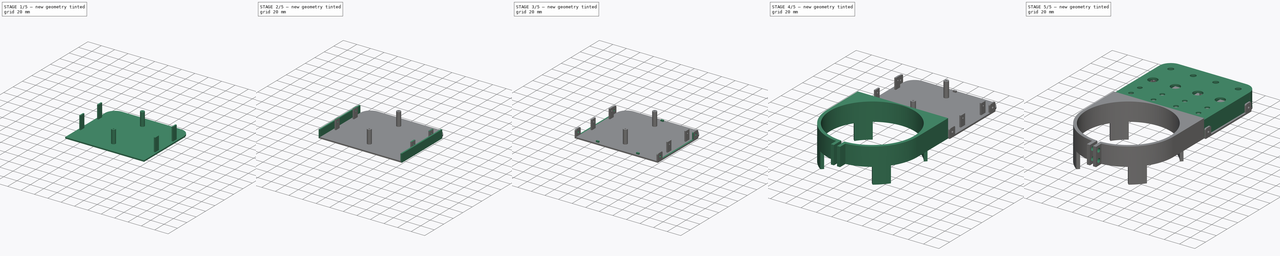
[diagram: build sequence overview — one tinted view per stage of 5, left to right]
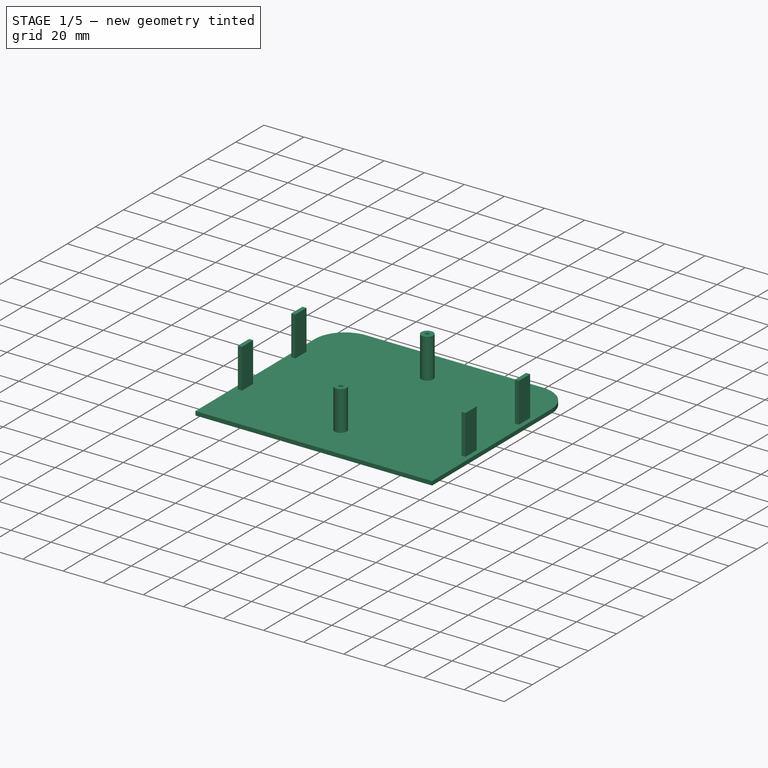
[diagram: stage 1 of 5 — iso view after this stage's code; geometry added in this stage tinted green]
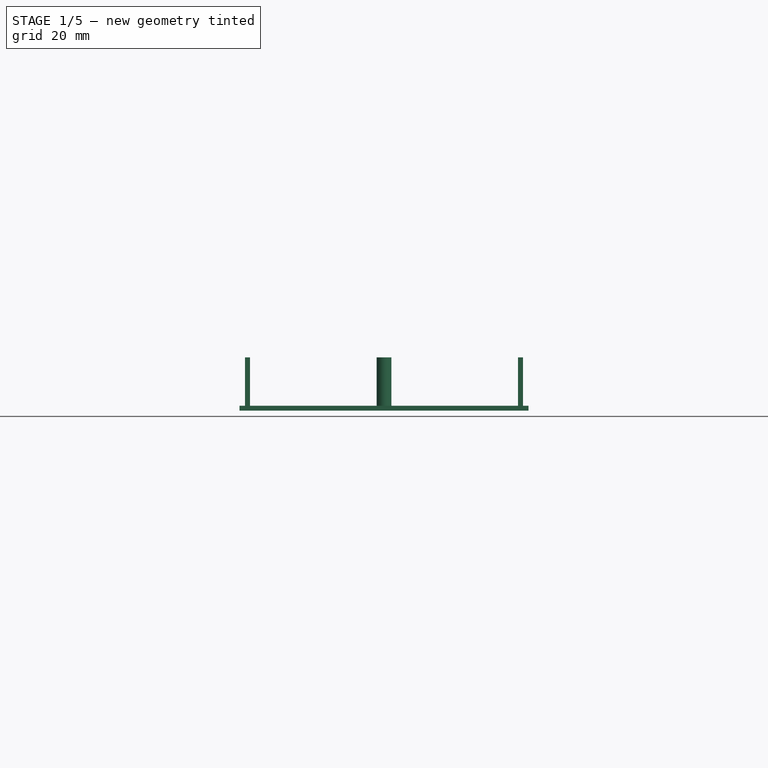
[diagram: stage 1 of 5 — front view after this stage's code; geometry added in this stage tinted green]
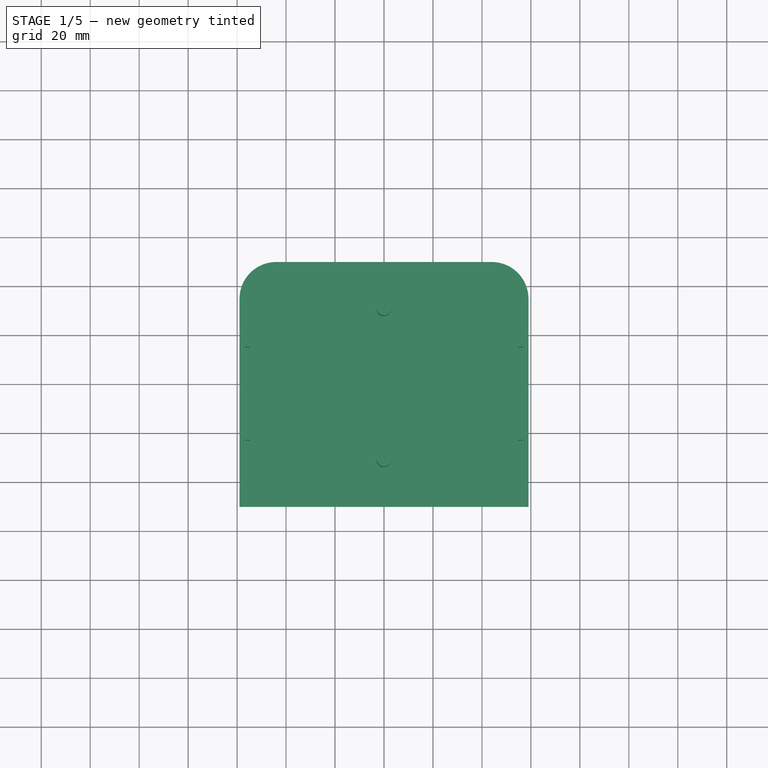
[diagram: stage 1 of 5 — top view after this stage's code; geometry added in this stage tinted green]
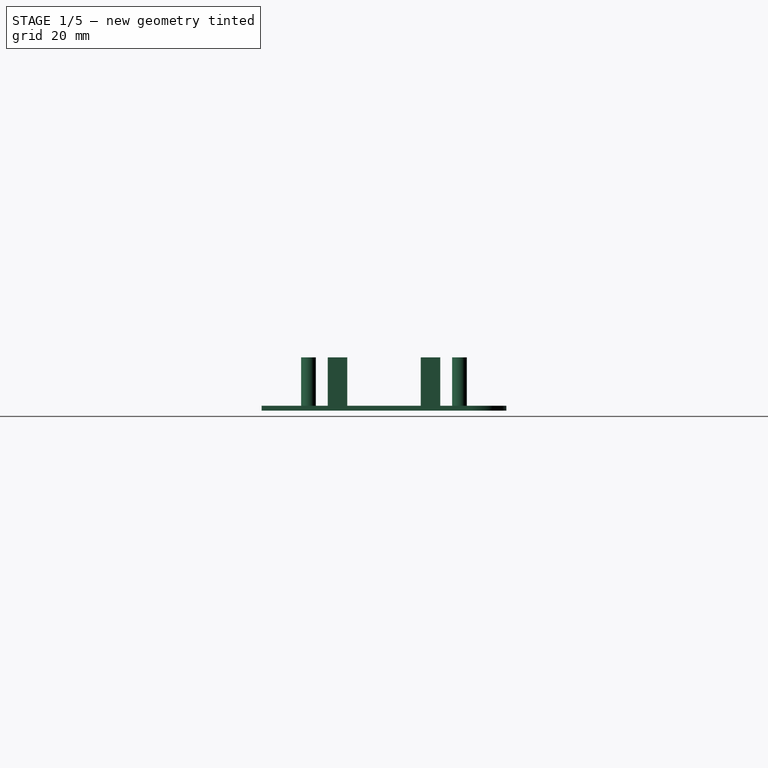
[diagram: stage 1 of 5 — right view after this stage's code; geometry added in this stage tinted green]
FCSTD DOCUMENT  (FreeCAD 0.20R29410 (Git))
Label: HOTAS-Stick-ButtonBox
License: All rights reserved
LicenseURL: http://en.wikipedia.org/wiki/All_rights_reserved
objects: Sketcher::SketchObject×22, PartDesign::Pocket×14, PartDesign::Pad×8, PartDesign::Body×4, Spreadsheet::Sheet×1, PartDesign::Fillet×1
note: 72 computed .brp shape members not serialized (recipe doc carries the construction recipe); baked Part::Feature solids carry a one-line shape summary decoded from their .brp

FEATURE [Sketcher::SketchObject] Sketch013
  FullyConstrained = true
  MapMode = 5
  Support = -> [XY_Plane002]
  expr: Constraints[10] = Spreadsheet.BoxWidth
  expr: Constraints[19] = Spreadsheet.BaseDiameter + 4 * Spreadsheet.Thickness
  expr: Constraints[7] = 30
  sketch-geometry (8):
    g0: LineSegment StartX=-59 StartY=-50 StartZ=0 EndX=59 EndY=-50 EndZ=0
    g1: LineSegment StartX=-59 StartY=35 StartZ=0 EndX=-59 EndY=-50 EndZ=0
    g2: LineSegment StartX=59 StartY=-50 StartZ=0 EndX=59 EndY=35 EndZ=0
    g3: LineSegment StartX=44 StartY=50 StartZ=0 EndX=-44 EndY=50 EndZ=0
    g4: ArcOfCircle CenterX=-44 CenterY=35 CenterZ=0 NormalX=0 NormalY=0 NormalZ=1 AngleXU=0 Radius=15 StartAngle=1.5708 EndAngle=3.14159
    g5: ArcOfCircle CenterX=44 CenterY=35 CenterZ=0 NormalX=0 NormalY=0 NormalZ=1 AngleXU=0 Radius=15 StartAngle=2e-16 EndAngle=1.5708
    g6: LineSegment StartX=44 StartY=50 StartZ=0 EndX=59 EndY=50 EndZ=0
    g7: LineSegment StartX=59 StartY=50 StartZ=0 EndX=59 EndY=35 EndZ=0
  constraints (20):
    c: Horizontal(g0)
    c: Horizontal(g3)
    c: Vertical(g2)
    c: Tangent(g1,g4) = -1.5708
    c: Tangent(g3,g4) = -1.5708
    c: Tangent(g2,g5) = -1.5708
    c: Tangent(g3,g5) = -1.5708
    c: Diameter(g4) = 30
    c: Equal(g4,g5)
    c: Vertical(g1)
    c: DistanceY(g0,g3) = 100
    c: Coincident(g3,g6)
    c: Horizontal(g6)
    c: Coincident(g6,g7)
    c: Coincident(g2,g7)
    c: Symmetric(g6,g0,g-1)
    c: Coincident(g0,g2)
    c: Vertical(g7)
    c: Coincident(g0,g1)
    c: DistanceX(g0,g0) = 118
FEATURE [PartDesign::Pad] Pad005
  Direction = (0,0,1)
  Length = 22
  Length2 = 10
  Profile = -> Sketch013
  ReferenceAxis = -> Sketch013 [N_Axis]
  Type = 0
  expr: Length = Spreadsheet.BoxHeight - Spreadsheet.Thickness
FEATURE [Sketcher::SketchObject] Sketch014
  FullyConstrained = true
  MapMode = 5
  Placement = pos=(0,0,0) rot=(1,0,0;3.14159rad)
  Support = -> [Pad005]
  expr: Constraints[13] = Spreadsheet.BoxWidth - 2 * Spreadsheet.Thickness
  expr: Constraints[20] = Spreadsheet.BaseDiameter + 2 * Spreadsheet.Thickness
  sketch-geometry (9):
    g0: LineSegment StartX=-57 StartY=48 StartZ=0 EndX=-57 EndY=-33 EndZ=0
    g1: LineSegment StartX=-42 StartY=-48 StartZ=0 EndX=42 EndY=-48 EndZ=0
    g2: LineSegment StartX=57 StartY=-33 StartZ=0 EndX=57 EndY=48 EndZ=0
    g3: LineSegment StartX=57 StartY=48 StartZ=0 EndX=-57 EndY=48 EndZ=0
    g4: GeomPoint X=0 Y=0 Z=0
    g5: ArcOfCircle CenterX=42 CenterY=-33 CenterZ=0 NormalX=0 NormalY=0 NormalZ=1 AngleXU=0 Radius=15 StartAngle=4.71239 EndAngle=6.28319
    g6: ArcOfCircle CenterX=-42 CenterY=-33 CenterZ=0 NormalX=0 NormalY=0 NormalZ=1 AngleXU=0 Radius=15 StartAngle=3.14159 EndAngle=4.71239
    g7: LineSegment StartX=42 StartY=-48 StartZ=0 EndX=57 EndY=-48 EndZ=0
    g8: LineSegment StartX=57 StartY=-48 StartZ=0 EndX=57 EndY=-33 EndZ=0
  constraints (21):
    c: Coincident(g2,g3)
    c: Coincident(g3,g0)
    c: Horizontal(g1)
    c: Horizontal(g3)
    c: Vertical(g0)
    c: Vertical(g2)
    c: Coincident(g4,g-1)
    c: Tangent(g1,g5) = -1.5708
    c: Tangent(g2,g5) = -1.5708
    c: Tangent(g0,g6) = -1.5708
    c: Tangent(g1,g6) = -1.5708
    c: Equal(g6,g5)
    c: Diameter(g5) = 30
    c: DistanceY(g1,g2) = 96
    c: Coincident(g1,g7)
    c: Horizontal(g7)
    c: Coincident(g7,g8)
    c: Vertical(g8)
    c: Coincident(g2,g8)
    c: Symmetric(g0,g7,g4)
    c: DistanceX(g3,g3) = 114
FEATURE [PartDesign::Pocket] Pocket008
  BaseFeature = -> Pad005
  Direction = (0,0,1)
  Length = 20
  Length2 = 5
  Profile = -> Sketch014
  ReferenceAxis = -> Sketch014 [N_Axis]
  Type = 0
  expr: Length = Spreadsheet.BoxHeight - 2 * Spreadsheet.Thickness
FEATURE [PartDesign::Body] Body003  label="Cap"
  Group = -> [Sketch020,Pad007,Sketch021,Pocket013,Sketch022,Pocket014,Sketch024,Pad009,Sketch025,Pocket015,Sketch037,Pocket023,Fillet]
  Origin = -> Origin003
  Placement = pos=(0,0,-2) rot=(0,0,1;0rad)
  Tip = -> Fillet
  expr: .Placement.Base.z = -Spreadsheet.Thickness
FEATURE [Sketcher::SketchObject] Sketch038
  FullyConstrained = true
  MapMode = 5
  Support = -> [XY_Plane004]
  expr: Constraints[13] = Spreadsheet.BoxWidth
  expr: Constraints[2] = Spreadsheet.BaseDiameter + 4 * Spreadsheet.Thickness
  sketch-geometry (9):
    g0: LineSegment StartX=59 StartY=-50 StartZ=0 EndX=-59 EndY=-50 EndZ=0
    g1: LineSegment StartX=-44 StartY=50 StartZ=0 EndX=44 EndY=50 EndZ=0
    g2: GeomPoint X=0 Y=0 Z=0
    g3: ArcOfCircle CenterX=-44 CenterY=35 CenterZ=0 NormalX=0 NormalY=0 NormalZ=1 AngleXU=0 Radius=15 StartAngle=1.5708 EndAngle=3.14159
    g4: ArcOfCircle CenterX=44 CenterY=35 CenterZ=0 NormalX=0 NormalY=0 NormalZ=1 AngleXU=0 Radius=15 StartAngle=0 EndAngle=1.5708
    g5: LineSegment StartX=44 StartY=50 StartZ=0 EndX=59 EndY=50 EndZ=0
    g6: LineSegment StartX=59 StartY=50 StartZ=0 EndX=59 EndY=35 EndZ=0
    g7: LineSegment StartX=-59 StartY=-50 StartZ=0 EndX=-59 EndY=35 EndZ=0
    g8: LineSegment StartX=59 StartY=-50 StartZ=0 EndX=59 EndY=35 EndZ=0
  constraints (21):
    c: Horizontal(g0)
    c: Horizontal(g1)
    c: DistanceX(g0,g0) = 118
    c: Tangent(g1,g3) = 1.5708
    c: Tangent(g1,g4) = 1.5708
    c: Equal(g4,g3)
    c: Coincident(g1,g5)
    c: Coincident(g5,g6)
    c: Vertical(g6)
    c: Symmetric(g0,g5,g2)
    c: Coincident(g2,g-1)
    c: Horizontal(g5)
    c: Diameter(g3) = 30
    c: DistanceY(g0,g5) = 100
    c: Coincident(g7,g0)
    c: Vertical(g7)
    c: Coincident(g8,g0)
    c: Vertical(g8)
    c: Tangent(g4,g8) = -1.5708
    c: Tangent(g3,g7) = 1.5708
    c: Coincident(g4,g6)
FEATURE [PartDesign::Pad] Pad012
  Direction = (0,0,1)
  Length = 2
  Length2 = 10
  Profile = -> Sketch038
  ReferenceAxis = -> Sketch038 [N_Axis]
  Type = 0
  expr: Length = Spreadsheet.Thickness
FEATURE [Sketcher::SketchObject] Sketch039
  ExternalGeometry = -> [Pad012]
  FullyConstrained = true
  MapMode = 5
  Placement = pos=(0,0,2) rot=(0,0,1;0rad)
  Support = -> [Pad012]
  expr: Constraints[11] = Spreadsheet.Thickness
  expr: Constraints[12] = 4 * Spreadsheet.Thickness
  expr: Constraints[14] = <<Sketch017>>.Constraints.SupportOffsetSouth
  expr: Constraints[15] = <<Sketch017>>.Constraints.SupportOffsetSouth
  expr: Constraints[39] = <<Sketch017>>.Constraints.SupportOffsetNorthSides
  expr: Constraints[42] = Spreadsheet.Thickness + Spreadsheet.Tolerance
  expr: Constraints[43] = <<Sketch017>>.Constraints.SupportOffsetNorthSides
  sketch-geometry (22):
    g0: Circle CenterX=0 CenterY=30.8333 CenterZ=0 NormalX=0 NormalY=0 NormalZ=1 AngleXU=0 Radius=3
    g1: Circle CenterX=0 CenterY=-30.8333 CenterZ=0 NormalX=0 NormalY=0 NormalZ=1 AngleXU=0 Radius=3
    g2: LineSegment StartX=-56.75 StartY=-15 StartZ=0 EndX=-54.75 EndY=-15 EndZ=0
    g3: LineSegment StartX=-54.75 StartY=-15 StartZ=0 EndX=-54.75 EndY=-23 EndZ=0
    g4: LineSegment StartX=-54.75 StartY=-23 StartZ=0 EndX=-56.75 EndY=-23 EndZ=0
    g5: LineSegment StartX=-56.75 StartY=-23 StartZ=0 EndX=-56.75 EndY=-15 EndZ=0
    g6: GeomPoint X=-55.75 Y=-19 Z=0
    g7: LineSegment StartX=-56.75 StartY=23 StartZ=0 EndX=-54.75 EndY=23 EndZ=0
    g8: LineSegment StartX=-54.75 StartY=23 StartZ=0 EndX=-54.75 EndY=15 EndZ=0
    g9: LineSegment StartX=-54.75 StartY=15 StartZ=0 EndX=-56.75 EndY=15 EndZ=0
    g10: LineSegment StartX=-56.75 StartY=15 StartZ=0 EndX=-56.75 EndY=23 EndZ=0
    g11: GeomPoint X=-55.75 Y=19 Z=0
    g12: LineSegment StartX=54.75 StartY=23 StartZ=0 EndX=56.75 EndY=23 EndZ=0
    g13: LineSegment StartX=56.75 StartY=23 StartZ=0 EndX=56.75 EndY=15 EndZ=0
    g14: LineSegment StartX=56.75 StartY=15 StartZ=0 EndX=54.75 EndY=15 EndZ=0
    g15: LineSegment StartX=54.75 StartY=15 StartZ=0 EndX=54.75 EndY=23 EndZ=0
    g16: GeomPoint X=55.75 Y=19 Z=0
    g17: LineSegment StartX=54.75 StartY=-15 StartZ=0 EndX=56.75 EndY=-15 EndZ=0
    g18: LineSegment StartX=56.75 StartY=-15 StartZ=0 EndX=56.75 EndY=-23 EndZ=0
    g19: LineSegment StartX=56.75 StartY=-23 StartZ=0 EndX=54.75 EndY=-23 EndZ=0
    g20: LineSegment StartX=54.75 StartY=-23 StartZ=0 EndX=54.75 EndY=-15 EndZ=0
    g21: GeomPoint X=55.75 Y=-19 Z=0
  constraints (56):
    c: PointOnObject(g0,g-2)
    c: PointOnObject(g1,g-2)
    c: Diameter(g1) = 6
    c: Coincident(g2,g3)
    c: Coincident(g3,g4)
    c: Coincident(g4,g5)
    c: Coincident(g5,g2)
    c: Horizontal(g2)
    c: Horizontal(g4)
    c: Vertical(g3)
    c: Vertical(g5)
    c: DistanceX(g4,g4) = 2
    c: DistanceY(g3,g3) = 8
    c: Equal(g1,g0)
    c: DistanceY(g1,g-1) = 30.8333
    c: DistanceY(g-1,g0) = 30.8333
    c: Symmetric(g2,g3,g6)
    c: Coincident(g7,g8)
    c: Coincident(g8,g9)
    c: Coincident(g9,g10)
    c: Coincident(g10,g7)
    c: Horizontal(g7)
    c: Horizontal(g9)
    c: Vertical(g8)
    c: Vertical(g10)
    c: Equal(g4,g9) = 2
    c: Equal(g3,g8) = 6
    c: Symmetric(g7,g8,g11)
    c: Coincident(g12,g13)
    c: Coincident(g13,g14)
    c: Coincident(g14,g15)
    c: Coincident(g15,g12)
    c: Horizontal(g12)
    c: Horizontal(g14)
    c: Vertical(g13)
    c: Vertical(g15)
    c: Equal(g4,g14) = 2
    c: Equal(g3,g13) = 6
    c: Symmetric(g12,g13,g16)
    c: DistanceY(g-1,g11) = 19
    c: Symmetric(g11,g16,g-2)
    c: Vertical(g9,g2)
    c: DistanceX(g-3,g4) = 2.25
    c: DistanceY(g6,g-1) = 19
    c: Coincident(g17,g18)
    c: Coincident(g18,g19)
    c: Coincident(g19,g20)
    c: Coincident(g20,g17)
    c: Horizontal(g17)
    c: Horizontal(g19)
    c: Vertical(g18)
    c: Vertical(g20)
    c: Equal(g4,g19) = 2
    c: Equal(g3,g18) = 8
    c: Symmetric(g17,g18,g21)
    c: Symmetric(g6,g21,g-2)
FEATURE [PartDesign::Pad] Pad013
  BaseFeature = -> Pad012
  Direction = (0,0,1)
  Length = 19.75
  Length2 = 10
  Profile = -> Sketch039
  ReferenceAxis = -> Sketch039 [N_Axis]
  Type = 0
  expr: Length = Spreadsheet.BoxHeight - 2 * Spreadsheet.Thickness - Spreadsheet.Tolerance
FEATURE [Sketcher::SketchObject] Sketch040
  ExternalGeometry = -> [Pad013]
  FullyConstrained = true
  MapMode = 5
  Placement = pos=(0,0,21.75) rot=(0,0,1;0rad)
  Support = -> [Pad013]
  sketch-geometry (2):
    g0: Circle CenterX=0 CenterY=30.8333 CenterZ=0 NormalX=0 NormalY=0 NormalZ=1 AngleXU=0 Radius=1
    g1: Circle CenterX=0 CenterY=-30.8333 CenterZ=0 NormalX=0 NormalY=0 NormalZ=1 AngleXU=0 Radius=1
  constraints (4):
    c: Coincident(g0,g-3)
    c: Coincident(g1,g-4)
    c: Diameter(g0) = 2
    c: Equal(g1,g0)
FEATURE [PartDesign::Pocket] Pocket024
  BaseFeature = -> Pad013
  Direction = (0,0,-1)
  Length = 2
  Length2 = 5
  Profile = -> Sketch040
  ReferenceAxis = -> Sketch040 [N_Axis]
  Type = 0
  expr: Length = Spreadsheet.Thickness
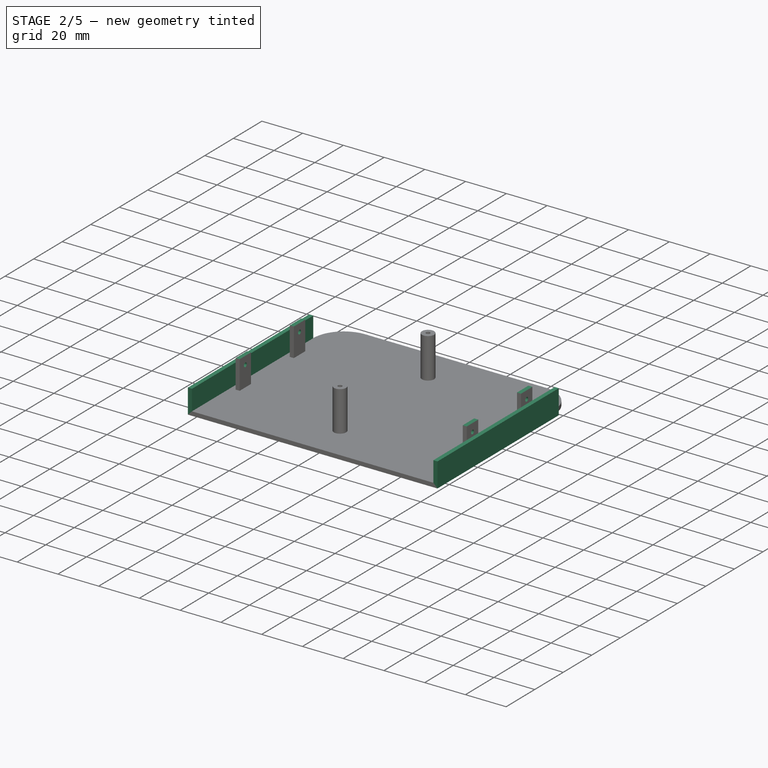
[diagram: stage 2 of 5 — iso view after this stage's code; geometry added in this stage tinted green]
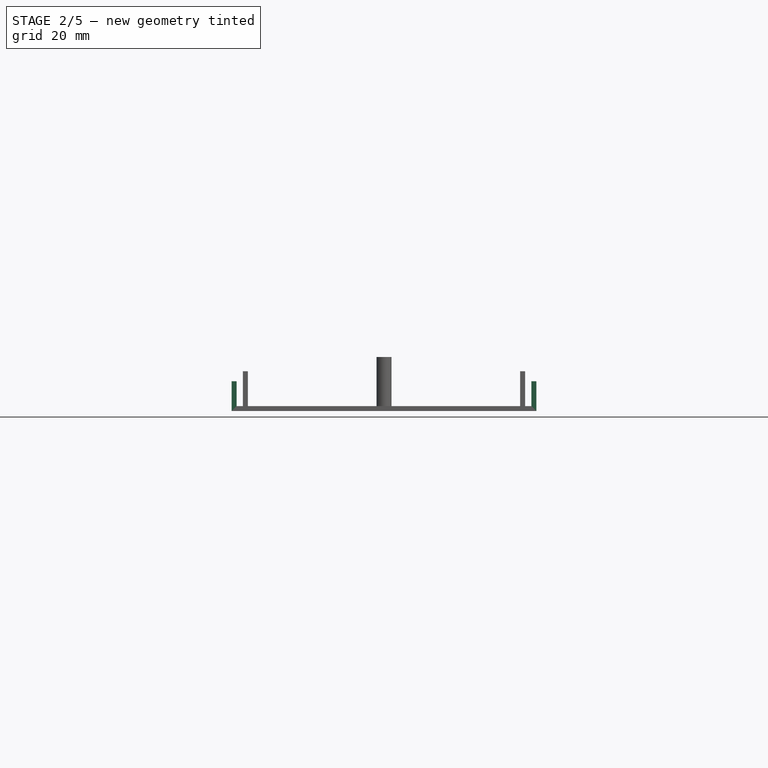
[diagram: stage 2 of 5 — front view after this stage's code; geometry added in this stage tinted green]
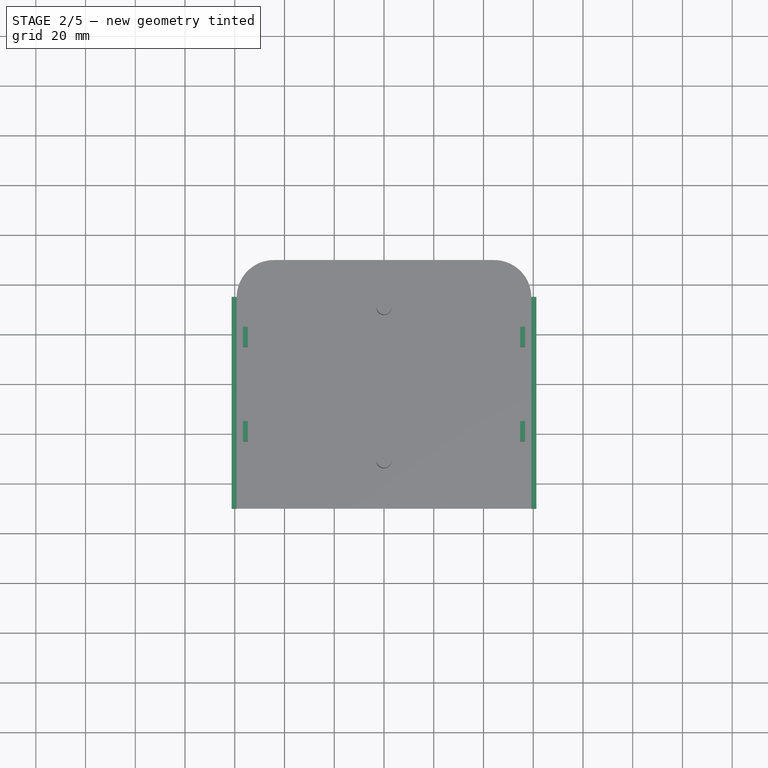
[diagram: stage 2 of 5 — top view after this stage's code; geometry added in this stage tinted green]
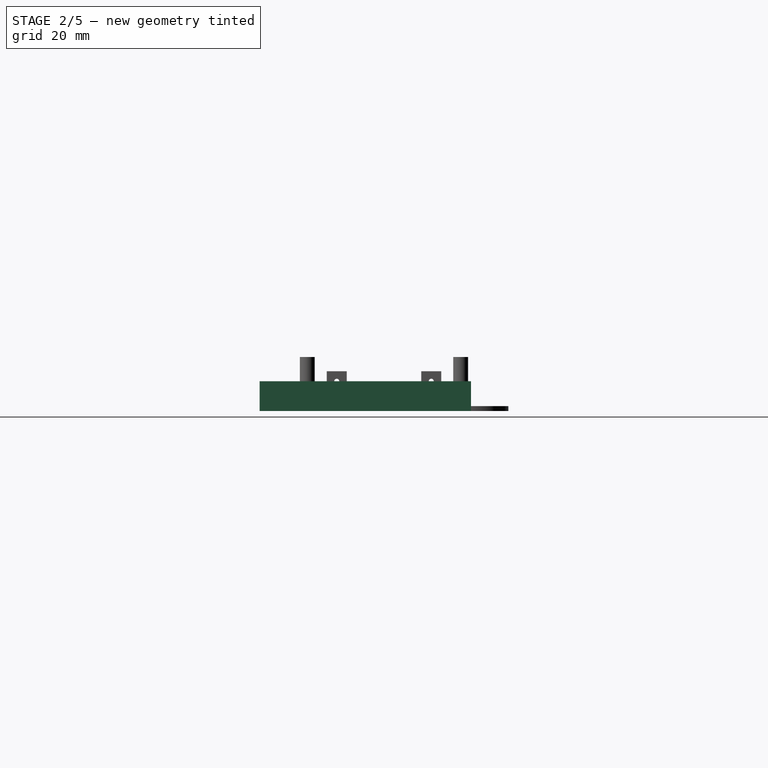
[diagram: stage 2 of 5 — right view after this stage's code; geometry added in this stage tinted green]
FEATURE [Sketcher::SketchObject] Sketch020
  FullyConstrained = true
  MapMode = 5
  Support = -> [XY_Plane003]
  expr: Constraints[27] = Spreadsheet.Thickness
  expr: Constraints[28] = Spreadsheet.BoxWidth
  expr: Constraints[2] = Spreadsheet.BaseDiameter + 6 * Spreadsheet.Thickness + 2 * Spreadsheet.Tolerance
  sketch-geometry (11):
    g0: LineSegment StartX=61.25 StartY=-50 StartZ=0 EndX=-61.25 EndY=-50 EndZ=0
    g1: LineSegment StartX=-44.25 StartY=50 StartZ=0 EndX=44.25 EndY=50 EndZ=0
    g2: GeomPoint X=0 Y=0 Z=0
    g3: ArcOfCircle CenterX=-44.25 CenterY=35 CenterZ=0 NormalX=0 NormalY=0 NormalZ=1 AngleXU=0 Radius=15 StartAngle=1.5708 EndAngle=3.14159
    g4: ArcOfCircle CenterX=44.25 CenterY=35 CenterZ=0 NormalX=0 NormalY=0 NormalZ=1 AngleXU=0 Radius=15 StartAngle=7.8e-15 EndAngle=1.5708
    g5: LineSegment StartX=-61.25 StartY=-50 StartZ=0 EndX=-61.25 EndY=35 EndZ=0
    g6: LineSegment StartX=-61.25 StartY=35 StartZ=0 EndX=-59.25 EndY=35 EndZ=0
    g7: LineSegment StartX=61.25 StartY=-50 StartZ=0 EndX=61.25 EndY=35 EndZ=0
    g8: LineSegment StartX=61.25 StartY=35 StartZ=0 EndX=59.25 EndY=35 EndZ=0
    g9: LineSegment StartX=44.25 StartY=50 StartZ=0 EndX=61.25 EndY=50 EndZ=0
    g10: LineSegment StartX=61.25 StartY=50 StartZ=0 EndX=61.25 EndY=35 EndZ=0
  constraints (29):
    c: Horizontal(g0)
    c: Horizontal(g1)
    c: DistanceX(g0,g0) = 122.5
    c: Tangent(g1,g3) = 1.5708
    c: Tangent(g1,g4) = 1.5708
    c: Equal(g4,g3)
    c: Coincident(g0,g5)
    c: Vertical(g5)
    c: Coincident(g5,g6)
    c: Horizontal(g6)
    c: Coincident(g0,g7)
    c: Vertical(g7)
    c: Coincident(g7,g8)
    c: Horizontal(g8)
    c: Coincident(g4,g8)
    c: Perpendicular(g4,g8)
    c: Perpendicular(g3,g6)
    c: Coincident(g3,g6)
    c: Equal(g6,g8)
    c: Coincident(g1,g9)
    c: Coincident(g9,g10)
    c: Vertical(g10)
    c: Coincident(g7,g10)
    c: Symmetric(g0,g9,g2)
    c: Coincident(g2,g-1)
    c: Horizontal(g9)
    c: Diameter(g3) = 30
    c: DistanceX(g8,g8) = 2
    c: DistanceY(g0,g9) = 100
FEATURE [PartDesign::Pad] Pad007
  Direction = (0,0,1)
  Length = 12
  Length2 = 10
  Profile = -> Sketch020
  ReferenceAxis = -> Sketch020 [N_Axis]
  Type = 0
  expr: Length = Spreadsheet.BoxHeight / 2
FEATURE [Sketcher::SketchObject] Sketch021
  FullyConstrained = true
  MapMode = 5
  Placement = pos=(0,0,12) rot=(0,0,1;0rad)
  Support = -> [Pad007]
  expr: Constraints[10] = Spreadsheet.BaseDiameter + 4 * Spreadsheet.Thickness + 2 * Spreadsheet.Tolerance
  expr: Constraints[11] = Spreadsheet.BoxWidth
  sketch-geometry (5):
    g0: LineSegment StartX=-59.25 StartY=50 StartZ=0 EndX=-59.25 EndY=-50 EndZ=0
    g1: LineSegment StartX=-59.25 StartY=-50 StartZ=0 EndX=59.25 EndY=-50 EndZ=0
    g2: LineSegment StartX=59.25 StartY=-50 StartZ=0 EndX=59.25 EndY=50 EndZ=0
    g3: LineSegment StartX=59.25 StartY=50 StartZ=0 EndX=-59.25 EndY=50 EndZ=0
    g4: GeomPoint X=0 Y=0 Z=0
  constraints (12):
    c: Coincident(g0,g1)
    c: Coincident(g1,g2)
    c: Coincident(g2,g3)
    c: Coincident(g3,g0)
    c: Horizontal(g1)
    c: Horizontal(g3)
    c: Vertical(g0)
    c: Vertical(g2)
    c: Symmetric(g1,g0,g4)
    c: Coincident(g4,g-1)
    c: DistanceX(g1,g1) = 118.5
    c: DistanceY(g2,g2) = 100
FEATURE [PartDesign::Pocket] Pocket013
  BaseFeature = -> Pad007
  Direction = (0,0,-1)
  Length = 10
  Length2 = 5
  Profile = -> Sketch021
  ReferenceAxis = -> Sketch021 [N_Axis]
  Type = 0
  expr: Length = Spreadsheet.BoxHeight / 2 - Spreadsheet.Thickness
FEATURE [Sketcher::SketchObject] Sketch041
  ExternalGeometry = -> [Pocket024]
  FullyConstrained = true
  MapMode = 5
  Placement = pos=(-56.75,0,0) rot=(0.57735,-0.57735,-0.57735;2.0944rad)
  Support = -> [Pocket024]
  expr: Constraints[2] = (Spreadsheet.BoxHeight - 2 * Spreadsheet.Thickness) / 2 - Spreadsheet.Tolerance
  sketch-geometry (4):
    g0: LineSegment StartX=-19 StartY=21.75 StartZ=0 EndX=-19 EndY=12 EndZ=0
    g1: LineSegment StartX=19 StartY=21.75 StartZ=0 EndX=19 EndY=12 EndZ=0
    g2: Circle CenterX=-19 CenterY=12 CenterZ=0 NormalX=0 NormalY=0 NormalZ=1 AngleXU=0 Radius=1
    g3: Circle CenterX=19 CenterY=12 CenterZ=0 NormalX=0 NormalY=0 NormalZ=1 AngleXU=0 Radius=1
  constraints (10):
    c: Vertical(g0)
    c: Symmetric(g-3,g-4,g0)
    c: DistanceY(g0,g0) = 9.75
    c: Vertical(g1)
    c: Symmetric(g-5,g-6,g1)
    c: Equal(g0,g1)
    c: Coincident(g2,g0)
    c: Coincident(g3,g1)
    c: Diameter(g2) = 2
    c: Equal(g2,g3)
FEATURE [PartDesign::Pocket] Pocket025
  BaseFeature = -> Pocket024
  Direction = (1,0,0)
  Length = 5
  Length2 = 5
  Profile = -> Sketch041
  ReferenceAxis = -> Sketch041 [N_Axis]
  Type = 1
FEATURE [Sketcher::SketchObject] Sketch042
  ExternalGeometry = -> [Pocket025]
  FullyConstrained = true
  MapMode = 5
  Placement = pos=(-56.75,0,0) rot=(0.57735,-0.57735,-0.57735;2.0944rad)
  Support = -> [Pocket025]
  sketch-geometry (10):
    g0: LineSegment StartX=-23 StartY=21.75 StartZ=0 EndX=-15 EndY=21.75 EndZ=0
    g1: LineSegment StartX=-15 StartY=21.75 StartZ=0 EndX=-15 EndY=16 EndZ=0
    g2: LineSegment StartX=-15 StartY=16 StartZ=0 EndX=-23 EndY=16 EndZ=0
    g3: LineSegment StartX=-23 StartY=16 StartZ=0 EndX=-23 EndY=21.75 EndZ=0
    g4: LineSegment StartX=-19 StartY=13 StartZ=0 EndX=-19 EndY=16 EndZ=0
    g5: LineSegment StartX=-18 StartY=12 StartZ=0 EndX=-15 EndY=12 EndZ=0
    g6: LineSegment StartX=15 StartY=21.75 StartZ=0 EndX=23 EndY=21.75 EndZ=0
    g7: LineSegment StartX=23 StartY=21.75 StartZ=0 EndX=23 EndY=16 EndZ=0
    g8: LineSegment StartX=23 StartY=16 StartZ=0 EndX=15 EndY=16 EndZ=0
    g9: LineSegment StartX=15 StartY=16 StartZ=0 EndX=15 EndY=21.75 EndZ=0
  constraints (30):
    c: Coincident(g0,g1)
    c: Coincident(g1,g2)
    c: Coincident(g2,g3)
    c: Coincident(g3,g0)
    c: Horizontal(g0)
    c: Horizontal(g2)
    c: Vertical(g1)
    c: Vertical(g3)
    c: Coincident(g0,g-3)
    c: PointOnObject(g1,g-5)
    c: PointOnObject(g4,g-4)
    c: PointOnObject(g4,g2)
    c: Vertical(g4)
    c: PointOnObject(g5,g-4)
    c: PointOnObject(g5,g-5)
    c: Horizontal(g5)
    c: Equal(g4,g5)
    c: Perpendicular(g-4,g5)
    c: Perpendicular(g-4,g4)
    c: Coincident(g6,g7)
    c: Coincident(g7,g8)
    c: Coincident(g8,g9)
    c: Coincident(g9,g6)
    c: Horizontal(g6)
    c: Horizontal(g8)
    c: Vertical(g7)
    c: Vertical(g9)
    c: Coincident(g6,g-6)
    c: PointOnObject(g7,g-7)
    c: Horizontal(g1,g8)
FEATURE [PartDesign::Pocket] Pocket026
  BaseFeature = -> Pocket025
  Direction = (1,0,0)
  Length = 5
  Length2 = 5
  Profile = -> Sketch042
  ReferenceAxis = -> Sketch042 [N_Axis]
  Type = 1
FEATURE [PartDesign::Body] Body004  label="Cap.v2"
  Group = -> [Sketch038,Pad012,Sketch039,Pad013,Sketch040,Pocket024,Sketch041,Pocket025,Sketch042,Pocket026]
  Origin = -> Origin004
  Placement = pos=(0,0,-2) rot=(0,0,1;0rad)
  Tip = -> Pocket026
  expr: .Placement.Base.z = -Spreadsheet.Thickness
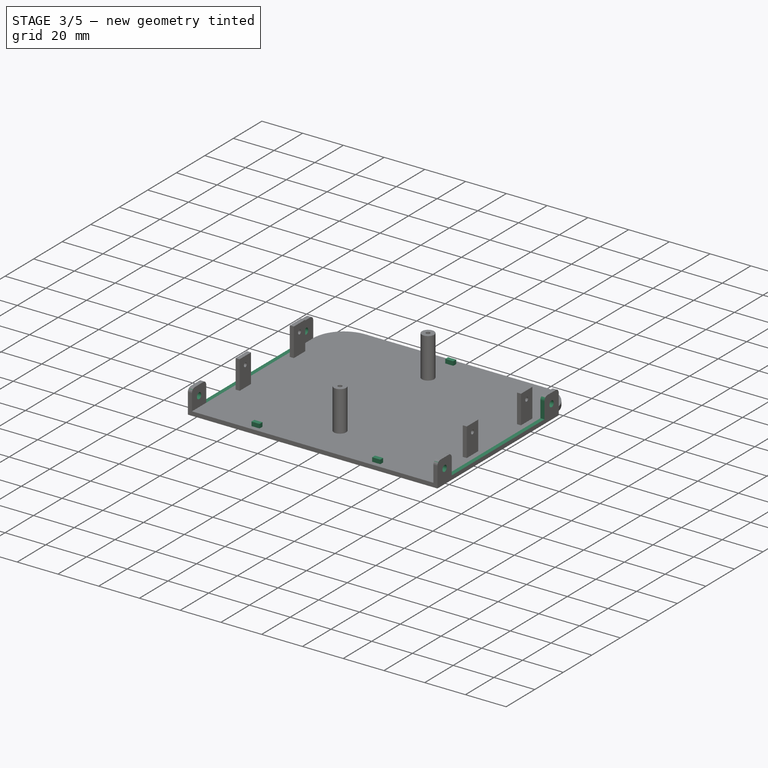
[diagram: stage 3 of 5 — iso view after this stage's code; geometry added in this stage tinted green]
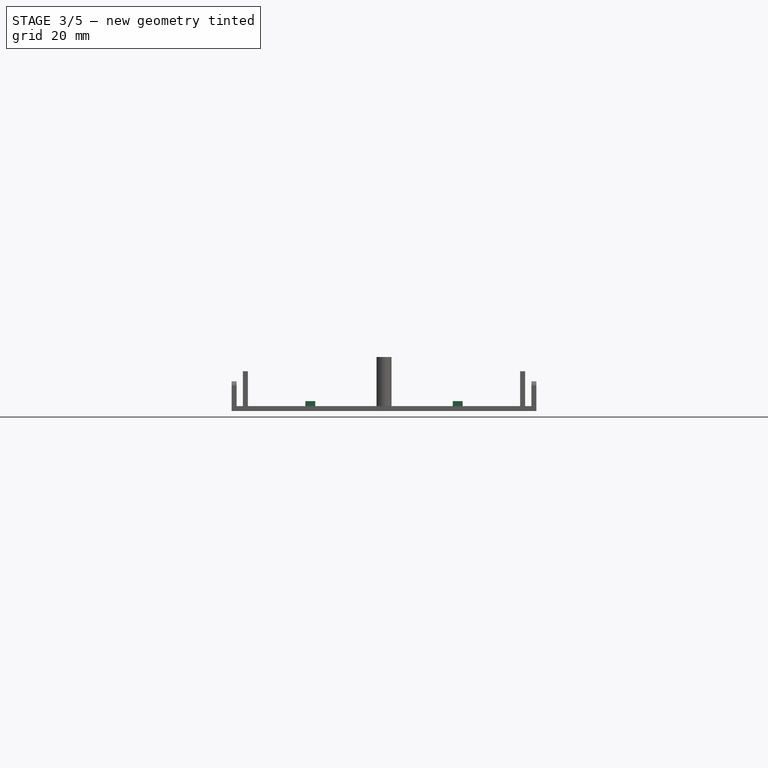
[diagram: stage 3 of 5 — front view after this stage's code; geometry added in this stage tinted green]
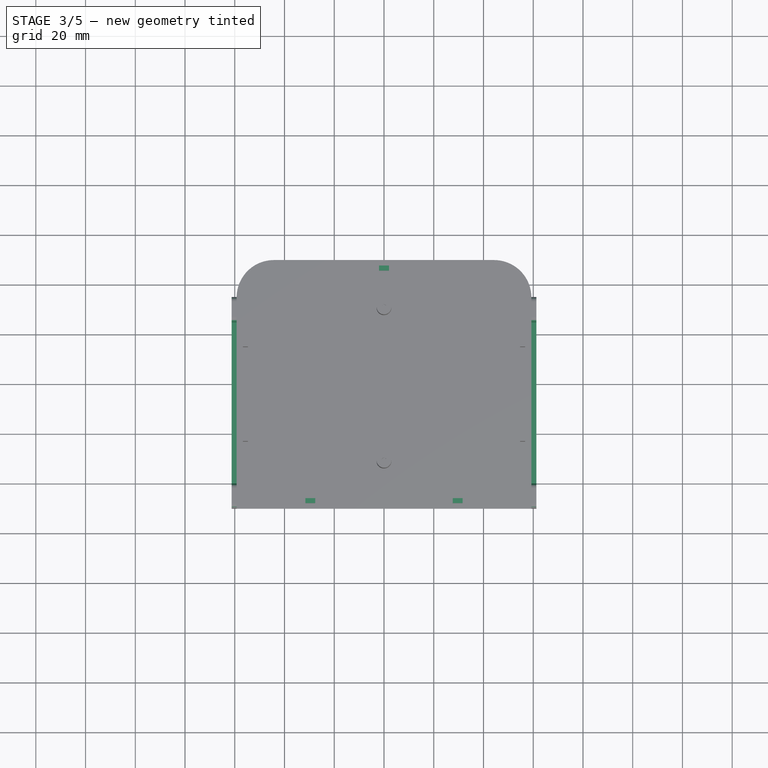
[diagram: stage 3 of 5 — top view after this stage's code; geometry added in this stage tinted green]
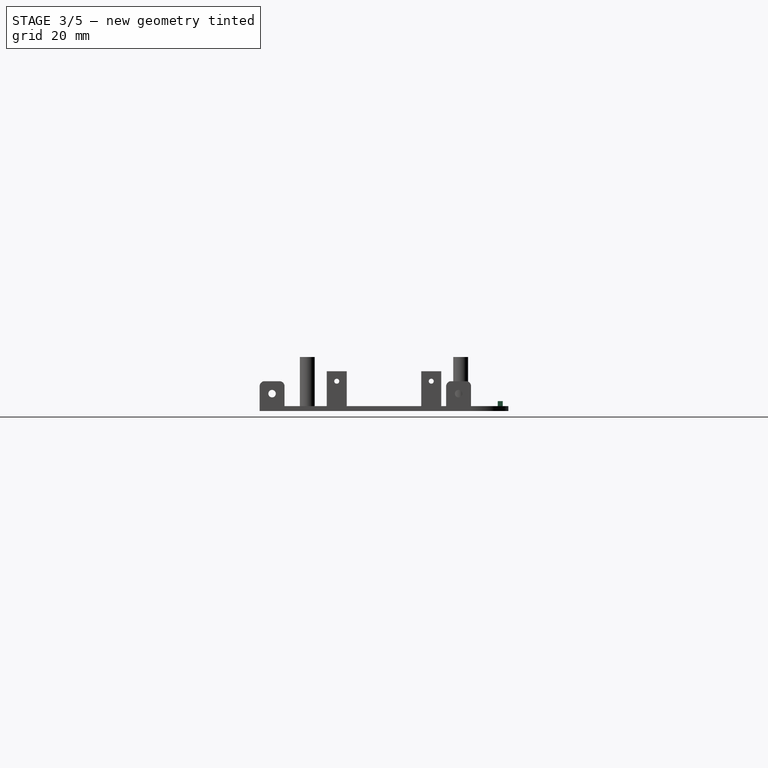
[diagram: stage 3 of 5 — right view after this stage's code; geometry added in this stage tinted green]
FEATURE [Sketcher::SketchObject] Sketch022
  ExternalGeometry = -> [Pocket013]
  FullyConstrained = true
  MapMode = 5
  Placement = pos=(61.25,0,0) rot=(0.57735,0.57735,0.57735;2.0944rad)
  Support = -> [Pocket013]
  sketch-geometry (7):
    g0: Circle CenterX=-45 CenterY=7 CenterZ=0 NormalX=0 NormalY=0 NormalZ=1 AngleXU=0 Radius=1.5
    g1: Circle CenterX=30 CenterY=7 CenterZ=0 NormalX=0 NormalY=0 NormalZ=1 AngleXU=0 Radius=1.5
    g2: GeomPoint X=-7.5 Y=7 Z=0
    g3: LineSegment StartX=-45 StartY=7 StartZ=0 EndX=-7.5 EndY=7 EndZ=0
    g4: LineSegment StartX=30 StartY=7 StartZ=0 EndX=-7.5 EndY=7 EndZ=0
    g5: LineSegment StartX=-45 StartY=7 StartZ=0 EndX=-45 EndY=12 EndZ=0
    g6: LineSegment StartX=-45 StartY=7 StartZ=0 EndX=-50 EndY=7 EndZ=0
  constraints (17):
    c: Equal(g0,g1)
    c: Diameter(g0) = 3
    c: Symmetric(g-3,g-4,g2)
    c: Coincident(g3,g0)
    c: Coincident(g3,g2)
    c: Horizontal(g3)
    c: Coincident(g4,g1)
    c: Coincident(g4,g2)
    c: Horizontal(g4)
    c: Equal(g3,g4)
    c: Coincident(g5,g0)
    c: PointOnObject(g5,g-5)
    c: Vertical(g5)
    c: Coincident(g6,g0)
    c: PointOnObject(g6,g-3)
    c: Horizontal(g6)
    c: Equal(g5,g6)
FEATURE [PartDesign::Pocket] Pocket014
  BaseFeature = -> Pocket013
  Direction = (-1,0,0)
  Length = 5
  Length2 = 5
  Profile = -> Sketch022
  ReferenceAxis = -> Sketch022 [N_Axis]
  Type = 1
FEATURE [Sketcher::SketchObject] Sketch024
  ExternalGeometry = -> [Pocket014]
  FullyConstrained = true
  MapMode = 5
  Placement = pos=(0,0,2) rot=(0,0,1;0rad)
  Support = -> [Pocket014]
  expr: Constraints[10] = 2 * Spreadsheet.Thickness
  expr: Constraints[13] = Spreadsheet.Thickness + Spreadsheet.Tolerance
  expr: Constraints[9] = Spreadsheet.Thickness
  sketch-geometry (19):
    g0: LineSegment StartX=0 StartY=50 StartZ=0 EndX=0 EndY=47.75 EndZ=0
    g1: LineSegment StartX=-2 StartY=47.75 StartZ=0 EndX=-2 EndY=45.75 EndZ=0
    g2: LineSegment StartX=-2 StartY=45.75 StartZ=0 EndX=2 EndY=45.75 EndZ=0
    g3: LineSegment StartX=2 StartY=45.75 StartZ=0 EndX=2 EndY=47.75 EndZ=0
    g4: LineSegment StartX=2 StartY=47.75 StartZ=0 EndX=-2 EndY=47.75 EndZ=0
    g5: GeomPoint X=1.3e-15 Y=46.75 Z=0
    g6: LineSegment StartX=29.625 StartY=-50 StartZ=0 EndX=29.625 EndY=-47.75 EndZ=0
    g7: LineSegment StartX=27.625 StartY=-45.75 StartZ=0 EndX=27.625 EndY=-47.75 EndZ=0
    g8: LineSegment StartX=27.625 StartY=-47.75 StartZ=0 EndX=31.625 EndY=-47.75 EndZ=0
    g9: LineSegment StartX=31.625 StartY=-47.75 StartZ=0 EndX=31.625 EndY=-45.75 EndZ=0
    g10: LineSegment StartX=31.625 StartY=-45.75 StartZ=0 EndX=27.625 EndY=-45.75 EndZ=0
    g11: GeomPoint X=29.625 Y=-46.75 Z=0
    g12: LineSegment StartX=-29.625 StartY=-50 StartZ=0 EndX=-29.625 EndY=-47.75 EndZ=0
    g13: LineSegment StartX=-31.625 StartY=-45.75 StartZ=0 EndX=-31.625 EndY=-47.75 EndZ=0
    g14: LineSegment StartX=-31.625 StartY=-47.75 StartZ=0 EndX=-27.625 EndY=-47.75 EndZ=0
    g15: LineSegment StartX=-27.625 StartY=-47.75 StartZ=0 EndX=-27.625 EndY=-45.75 EndZ=0
    g16: LineSegment StartX=-27.625 StartY=-45.75 StartZ=0 EndX=-31.625 EndY=-45.75 EndZ=0
    g17: GeomPoint X=-29.625 Y=-46.75 Z=0
    g18: GeomPoint X=2e-16 Y=-50 Z=0
  constraints (47):
    c: Coincident(g1,g2)
    c: Coincident(g2,g3)
    c: Coincident(g3,g4)
    c: Coincident(g4,g1)
    c: Horizontal(g2)
    c: Horizontal(g4)
    c: Vertical(g1)
    c: Vertical(g3)
    c: Symmetric(g2,g1,g5)
    c: DistanceY(g3,g3) = 2
    c: DistanceX(g2,g2) = 4
    c: Symmetric(g1,g3,g0)
    c: Vertical(g0)
    c: DistanceY(g0,g0) = 2.25
    c: Coincident(g7,g8)
    c: Coincident(g8,g9)
    c: Coincident(g9,g10)
    c: Coincident(g10,g7)
    c: Horizontal(g8)
    c: Horizontal(g10)
    c: Vertical(g7)
    c: Vertical(g9)
    c: Symmetric(g8,g7,g11)
    c: Symmetric(g7,g8,g6)
    c: Vertical(g6)
    c: Coincident(g13,g14)
    c: Coincident(g14,g15)
    c: Coincident(g15,g16)
    c: Coincident(g16,g13)
    c: Horizontal(g14)
    c: Horizontal(g16)
    c: Vertical(g13)
    c: Vertical(g15)
    c: Symmetric(g14,g13,g17)
    c: Symmetric(g13,g14,g12)
    c: Vertical(g12)
    c: Equal(g4,g16)
    c: Equal(g16,g10)
    c: Equal(g12,g6)
    c: Equal(g6,g0)
    c: Equal(g3,g15)
    c: Equal(g15,g9)
    c: PointOnObject(g0,g-3)
    c: PointOnObject(g0,g-2)
    c: Symmetric(g-4,g18,g12)
    c: Symmetric(g18,g-4,g6)
    c: Symmetric(g-4,g-4,g18)
FEATURE [PartDesign::Pad] Pad009
  BaseFeature = -> Pocket014
  Direction = (0,0,1)
  Length = 2
  Length2 = 10
  Profile = -> Sketch024
  ReferenceAxis = -> Sketch024 [N_Axis]
  Type = 0
  expr: Length = Spreadsheet.Thickness
FEATURE [Sketcher::SketchObject] Sketch025
  ExternalGeometry = -> [Pad009]
  FullyConstrained = true
  MapMode = 5
  Placement = pos=(0,0,2) rot=(0,0,1;0rad)
  Support = -> [Pad009]
  expr: Constraints[11] = Spreadsheet.Thickness + Spreadsheet.WireWidth
  expr: Constraints[12] = Spreadsheet.WireWidth
  sketch-geometry (5):
    g0: LineSegment StartX=-1.5 StartY=-45 StartZ=0 EndX=-1.5 EndY=-50 EndZ=0
    g1: LineSegment StartX=-1.5 StartY=-50 StartZ=0 EndX=1.5 EndY=-50 EndZ=0
    g2: LineSegment StartX=1.5 StartY=-50 StartZ=0 EndX=1.5 EndY=-45 EndZ=0
    g3: LineSegment StartX=1.5 StartY=-45 StartZ=0 EndX=-1.5 EndY=-45 EndZ=0
    g4: GeomPoint X=0 Y=-47.5 Z=0
  constraints (13):
    c: Coincident(g0,g1)
    c: Coincident(g1,g2)
    c: Coincident(g2,g3)
    c: Coincident(g3,g0)
    c: Horizontal(g1)
    c: Horizontal(g3)
    c: Vertical(g0)
    c: Vertical(g2)
    c: Symmetric(g1,g0,g4)
    c: PointOnObject(g4,g-2)
    c: PointOnObject(g1,g-3)
    c: DistanceY(g2,g2) = 5
    c: DistanceX(g1,g1) = 3
FEATURE [PartDesign::Pocket] Pocket015
  BaseFeature = -> Pad009
  Direction = (0,0,-1)
  Length = 5
  Length2 = 5
  Profile = -> Sketch025
  ReferenceAxis = -> Sketch025 [N_Axis]
  Type = 1
FEATURE [PartDesign::Body] Body  label="Mount"
  Group = -> [Sketch,Pad,Sketch033,Pocket,Sketch034,Pocket021,Sketch035,Pad011,Sketch036,Pocket022]
  Origin = -> Origin
  Placement = pos=(0,0,-2) rot=(0,0,1;0rad)
  Tip = -> Pocket022
FEATURE [Sketcher::SketchObject] Sketch037
  ExternalGeometry = -> [Pocket015]
  FullyConstrained = true
  MapMode = 5
  Placement = pos=(61.25,0,0) rot=(0.57735,0.57735,0.57735;2.0944rad)
  Support = -> [Pocket015]
  sketch-geometry (4):
    g0: LineSegment StartX=-40 StartY=12 StartZ=0 EndX=25 EndY=12 EndZ=0
    g1: LineSegment StartX=25 StartY=12 StartZ=0 EndX=25 EndY=2 EndZ=0
    g2: LineSegment StartX=25 StartY=2 StartZ=0 EndX=-40 EndY=2 EndZ=0
    g3: LineSegment StartX=-40 StartY=2 StartZ=0 EndX=-40 EndY=12 EndZ=0
  constraints (10):
    c: Coincident(g0,g1)
    c: Coincident(g1,g2)
    c: Coincident(g2,g3)
    c: Coincident(g3,g0)
    c: Horizontal(g0)
    c: Vertical(g1)
    c: Vertical(g3)
    c: PointOnObject(g0,g-3)
    c: Symmetric(g2,g-3,g-4)
    c: Symmetric(g1,g-3,g-5)
FEATURE [PartDesign::Pocket] Pocket023
  BaseFeature = -> Pocket015
  Direction = (-1,0,0)
  Length = 5
  Length2 = 5
  Profile = -> Sketch037
  ReferenceAxis = -> Sketch037 [N_Axis]
  Type = 1
FEATURE [PartDesign::Fillet] Fillet
  Base = -> Pocket023 [Edge69,Edge94,Edge37,Edge5,Edge49,Edge100,Edge101,Edge61]
  BaseFeature = -> Pocket023
  Radius = 2
  SupportTransform = false
  UseAllEdges = false
  expr: Radius = Spreadsheet.Thickness
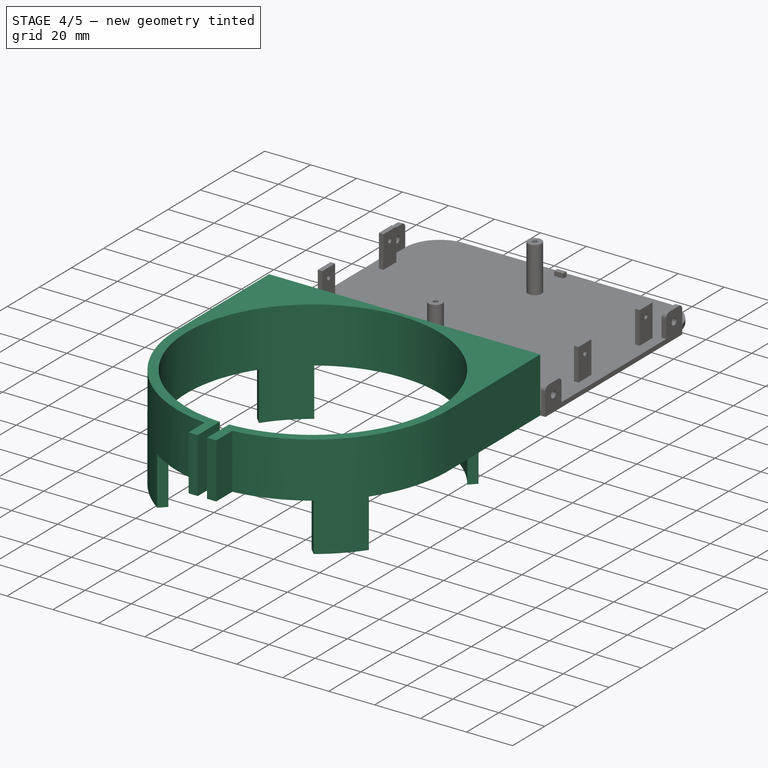
[diagram: stage 4 of 5 — iso view after this stage's code; geometry added in this stage tinted green]
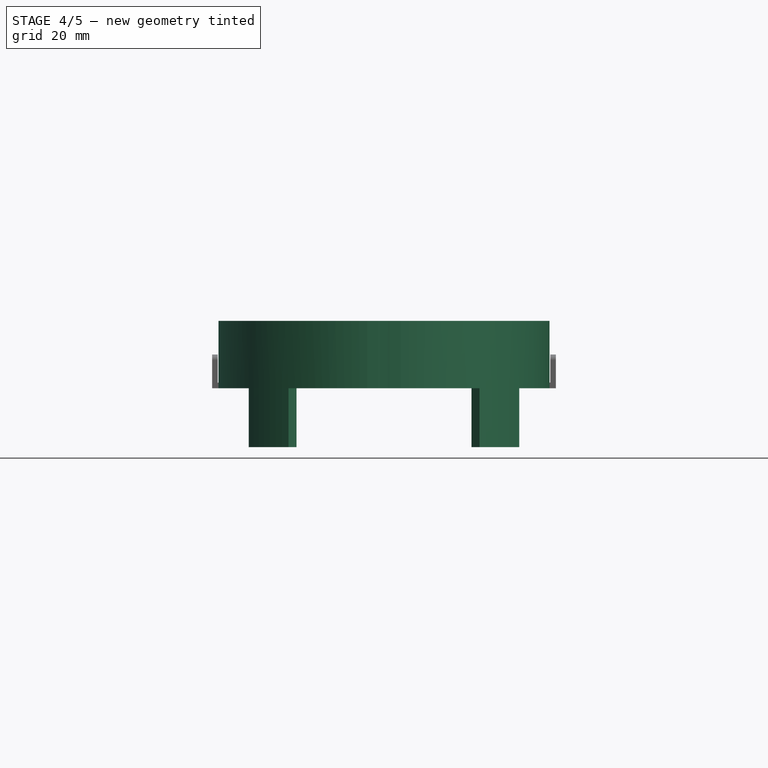
[diagram: stage 4 of 5 — front view after this stage's code; geometry added in this stage tinted green]
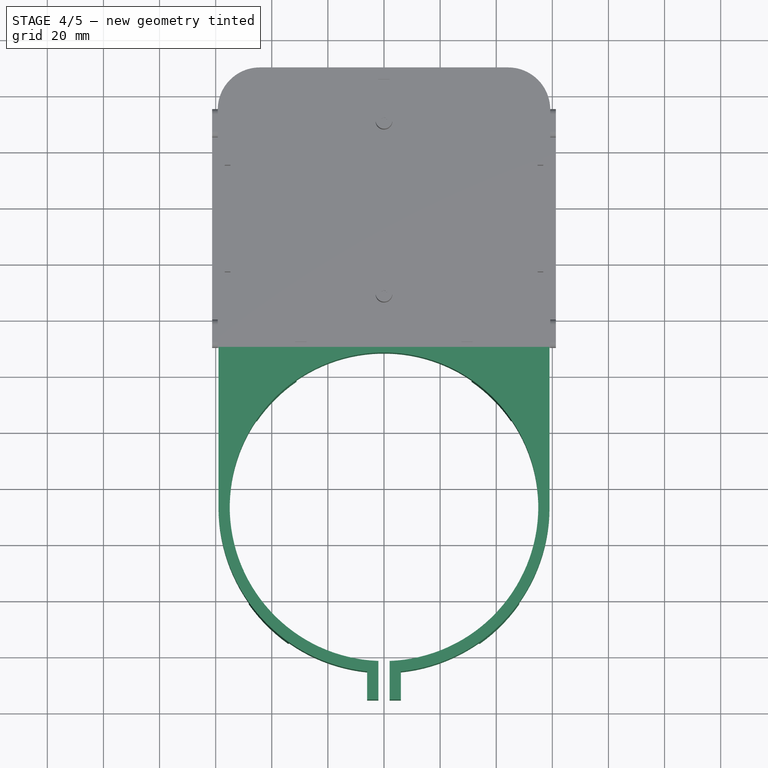
[diagram: stage 4 of 5 — top view after this stage's code; geometry added in this stage tinted green]
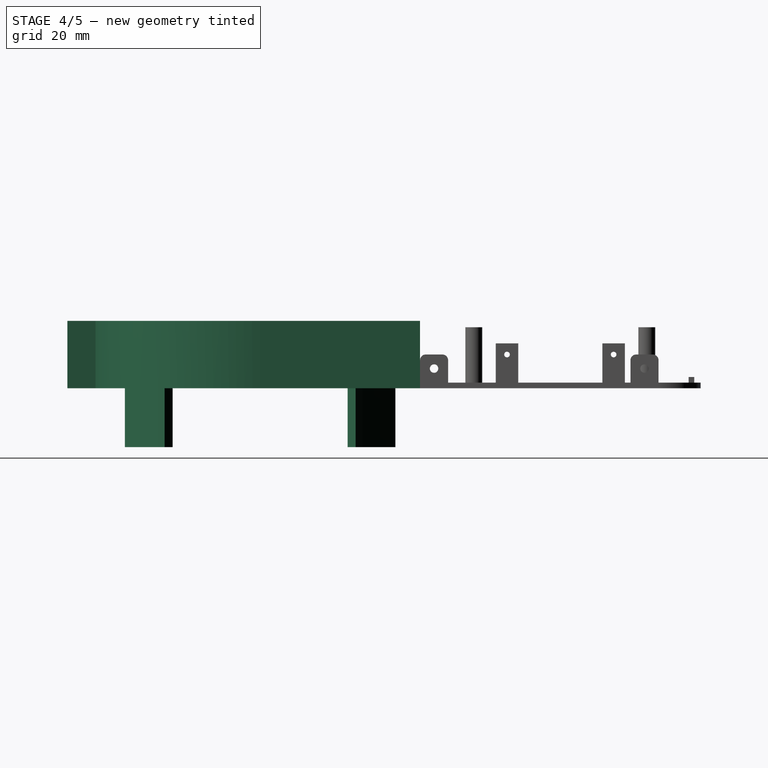
[diagram: stage 4 of 5 — right view after this stage's code; geometry added in this stage tinted green]
FEATURE [Spreadsheet::Sheet] Spreadsheet
  cells = A1=Tolerance; B1(Tolerance)=0.25; A2=Thickness; B2(Thickness)=2; A3=BaseDiameter; B3(BaseDiameter)=110; A4=BoxWidth; B4(BoxWidth)=100; A5=BoxHeight; B5(BoxHeight)=24; A6=BoltSmallDiameter; B6(BoltSmallDiameter)=5; A7=NutSmallDiameter; B7(NutSmallDiameter)=9; A8=RotaryPotDiamter; B8(RotaryPotDiamter)=7; A9=SwitchDiameter; B9(SwitchDiameter)=5.75; A10=JoystickDiameter; B10(JoystickDiameter)=12; A11=JoystickSupportHeight; B11(JoystickSupportHeight)==B5 - 2 * B2 - 12; A12=WireWidth; B12(WireWidth)=3
FEATURE [Sketcher::SketchObject] Sketch
  FullyConstrained = true
  MapMode = 5
  Support = -> [XY_Plane]
  expr: Constraints[17] = 2 * Spreadsheet.Thickness
  expr: Constraints[18] = 2 * Spreadsheet.Thickness
  expr: Constraints[1] = Spreadsheet.Thickness
  expr: Constraints[24] = Spreadsheet.BaseDiameter + 4 * Spreadsheet.Thickness
  expr: Constraints[26] = Spreadsheet.BaseDiameter
  expr: Constraints[5] = Spreadsheet.BoxWidth
  sketch-geometry (18):
    g0: LineSegment StartX=-6.71e-14 StartY=-52 StartZ=0 EndX=-6.71e-14 EndY=-50 EndZ=0
    g1: LineSegment StartX=-59 StartY=-50 StartZ=0 EndX=59 EndY=-50 EndZ=0
    g2: LineSegment StartX=-59 StartY=50 StartZ=0 EndX=-59 EndY=-50 EndZ=0
    g3: LineSegment StartX=-2 StartY=-161.964 StartZ=0 EndX=-2 EndY=-175.694 EndZ=0
    g4: LineSegment StartX=-2 StartY=-175.694 StartZ=0 EndX=-6 EndY=-175.694 EndZ=0
    g5: LineSegment StartX=-6 StartY=-175.694 StartZ=0 EndX=-6 EndY=-165.694 EndZ=0
    g6: LineSegment StartX=6 StartY=-165.694 StartZ=0 EndX=6 EndY=-175.694 EndZ=0
    g7: LineSegment StartX=6 StartY=-175.694 StartZ=0 EndX=2 EndY=-175.694 EndZ=0
    g8: LineSegment StartX=2 StartY=-175.694 StartZ=0 EndX=2 EndY=-161.964 EndZ=0
    g9: ArcOfCircle CenterX=-6.71e-14 CenterY=-107 CenterZ=0 NormalX=0 NormalY=0 NormalZ=1 AngleXU=0 Radius=59 StartAngle=3.14159 EndAngle=4.61052
    g10: ArcOfCircle CenterX=-6.71e-14 CenterY=-107 CenterZ=0 NormalX=0 NormalY=0 NormalZ=1 AngleXU=0 Radius=59 StartAngle=4.81426 EndAngle=6.28318
    g11: ArcOfCircle CenterX=-6.71e-14 CenterY=-107 CenterZ=0 NormalX=0 NormalY=0 NormalZ=1 AngleXU=0 Radius=55 StartAngle=4.74876 EndAngle=10.9592
    g12: LineSegment StartX=-2 StartY=-175.694 StartZ=0 EndX=0 EndY=-175.694 EndZ=0
    g13: LineSegment StartX=2 StartY=-175.694 StartZ=0 EndX=0 EndY=-175.694 EndZ=0
    g14: LineSegment StartX=-59 StartY=50 StartZ=0 EndX=59 EndY=50 EndZ=0
    g15: LineSegment StartX=59 StartY=-50 StartZ=0 EndX=59 EndY=50 EndZ=0
    g16: LineSegment StartX=-59 StartY=-107 StartZ=0 EndX=-59 EndY=-50 EndZ=0
    g17: LineSegment StartX=59 StartY=-50 StartZ=0 EndX=59 EndY=-107 EndZ=0
  constraints (53):
    c: Vertical(g0)
    c: DistanceY(g0,g0) = 2
    c: Horizontal(g1)
    c: PointOnObject(g0,g1)
    c: Vertical(g2)
    c: DistanceY(g1,g14) = 100
    c: Coincident(g3,g4)
    c: Coincident(g4,g5)
    c: Horizontal(g4)
    c: Vertical(g3)
    c: Vertical(g5)
    c: Coincident(g6,g7)
    c: Coincident(g7,g8)
    c: Horizontal(g7)
    c: Vertical(g6)
    c: Vertical(g8)
    c: Equal(g4,g7)
    c: DistanceX(g4,g4) = 4
    c: DistanceX(g3,g7) = 4
    c: Horizontal(g7,g3)
    c: Horizontal(g5,g6)
    c: Coincident(g9,g5)
    c: Coincident(g10,g6)
    c: Equal(g9,g10)
    c: Diameter(g10) = 118
    c: Coincident(g11,g9)
    c: Diameter(g11) = 110
    c: Coincident(g11,g3)
    c: Coincident(g8,g11)
    c: Coincident(g12,g3)
    c: PointOnObject(g12,g-2)
    c: Coincident(g13,g7)
    c: Coincident(g13,g12)
    c: Equal(g12,g13)
    c: Horizontal(g12)
    c: DistanceY(g6,g6) = 10
    c: Coincident(g9,g10)
    c: PointOnObject(g0,g11)
    c: Perpendicular(g11,g0)
    c: Coincident(g14,g2)
    c: Horizontal(g14)
    c: Coincident(g14,g15)
    c: Symmetric(g14,g1,g-1)
    c: Vertical(g15)
    c: Coincident(g1,g15)
    c: Coincident(g2,g1)
    c: Tangent(g2,g9)
    c: Coincident(g16,g9)
    c: Coincident(g16,g1)
    c: Coincident(g17,g1)
    c: Coincident(g17,g10)
    c: Vertical(g17)
    c: Vertical(g16)
FEATURE [PartDesign::Pad] Pad
  Direction = (0,0,1)
  Length = 24
  Length2 = 10
  Profile = -> Sketch
  ReferenceAxis = -> Sketch [N_Axis]
  Type = 0
  expr: Length = Spreadsheet.BoxHeight
FEATURE [PartDesign::Body] Body002  label="Panel"
  Group = -> [Sketch013,Pad005,Sketch014,Pocket008,Sketch017,Pocket011,Sketch030,Pad010,Sketch031,Pocket019,Sketch032,Pocket020]
  Origin = -> Origin002
  Tip = -> Pocket020
FEATURE [Sketcher::SketchObject] Sketch033
  ExternalGeometry = -> [Pad]
  FullyConstrained = true
  MapMode = 5
  Placement = pos=(0,0,0) rot=(1,0,0;3.14159rad)
  Support = -> [Pad]
  sketch-geometry (9):
    g0: LineSegment StartX=-55 StartY=85.6458 StartZ=0 EndX=-55 EndY=52 EndZ=0
    g1: LineSegment StartX=-55 StartY=52 StartZ=0 EndX=-21.3542 EndY=52 EndZ=0
    g2: ArcOfCircle CenterX=-6.71e-14 CenterY=107 CenterZ=0 NormalX=0 NormalY=0 NormalZ=1 AngleXU=0 Radius=59 StartAngle=3.51194 EndAngle=4.34205
    g3: LineSegment StartX=-55 StartY=52 StartZ=0 EndX=-59 EndY=52 EndZ=0
    g4: LineSegment StartX=21.3542 StartY=52 StartZ=0 EndX=55 EndY=52 EndZ=0
    g5: LineSegment StartX=55 StartY=52 StartZ=0 EndX=55 EndY=85.6458 EndZ=0
    g6: ArcOfCircle CenterX=-6.71e-14 CenterY=107 CenterZ=0 NormalX=0 NormalY=0 NormalZ=1 AngleXU=0 Radius=59 StartAngle=5.08273 EndAngle=5.91284
    g7: LineSegment StartX=38.8909 StartY=68.1091 StartZ=0 EndX=41.7193 EndY=65.2807 EndZ=0
    g8: LineSegment StartX=-38.8909 StartY=68.1091 StartZ=0 EndX=-41.7193 EndY=65.2807 EndZ=0
  constraints (29):
    c: Vertical(g0)
    c: Coincident(g0,g1)
    c: Horizontal(g1)
    c: Coincident(g2,g-4)
    c: Coincident(g2,g0)
    c: Coincident(g1,g2)
    c: Tangent(g-4,g1)
    c: Tangent(g0,g-4)
    c: Coincident(g3,g0)
    c: PointOnObject(g3,g-3)
    c: Horizontal(g3)
    c: Horizontal(g4)
    c: Coincident(g4,g5)
    c: Vertical(g5)
    c: Coincident(g6,g2)
    c: Coincident(g6,g5)
    c: Coincident(g4,g6)
    c: Tangent(g-4,g4)
    c: Tangent(g-4,g5)
    c: PointOnObject(g7,g-4)
    c: PointOnObject(g7,g6)
    c: PointOnObject(g8,g-4)
    c: PointOnObject(g8,g2)
    c: Perpendicular(g-4,g8)
    c: Perpendicular(g-4,g7)
    c: Equal(g7,g8)
    c: Equal(g8,g3)
    c: PointOnObject(g4,g7)
    c: PointOnObject(g0,g8)
FEATURE [PartDesign::Pocket] Pocket
  BaseFeature = -> Pad
  Direction = (0,0,1)
  Length = 22
  Length2 = 5
  Profile = -> Sketch033
  ReferenceAxis = -> Sketch033 [N_Axis]
  Type = 0
  expr: Length = Spreadsheet.BoxHeight - Spreadsheet.Thickness
FEATURE [Sketcher::SketchObject] Sketch034
  ExternalGeometry = -> [Pocket]
  FullyConstrained = true
  MapMode = 5
  Placement = pos=(0,-52,0) rot=(1,0,0;1.5708rad)
  Support = -> [Pocket]
  expr: Constraints[10] = Spreadsheet.Thickness
  expr: Constraints[6] = Spreadsheet.BoltSmallDiameter + Spreadsheet.Tolerance
  expr: Constraints[7] = 4 * Spreadsheet.Thickness
  sketch-geometry (6):
    g0: Circle CenterX=51 CenterY=13 CenterZ=0 NormalX=0 NormalY=0 NormalZ=1 AngleXU=0 Radius=2.625
    g1: LineSegment StartX=51 StartY=13 StartZ=0 EndX=59 EndY=13 EndZ=0
    g2: Circle CenterX=-51 CenterY=13 CenterZ=0 NormalX=0 NormalY=0 NormalZ=1 AngleXU=0 Radius=2.625
    g3: LineSegment StartX=-51 StartY=13 StartZ=0 EndX=-59 EndY=13 EndZ=0
    g4: LineSegment StartX=59 StartY=9e-16 StartZ=0 EndX=59 EndY=2 EndZ=0
    g5: LineSegment StartX=-59 StartY=9e-16 StartZ=0 EndX=-59 EndY=2 EndZ=0
  constraints (16):
    c: Coincident(g1,g0)
    c: Horizontal(g1)
    c: Coincident(g3,g2)
    c: Horizontal(g3)
    c: Equal(g3,g1)
    c: Equal(g2,g0)
    c: Diameter(g0) = 5.25
    c: DistanceX(g1,g1) = 8
    c: Coincident(g4,g-3)
    c: PointOnObject(g4,g-3)
    c: DistanceY(g4,g4) = 2
    c: Symmetric(g-3,g4,g1)
    c: Coincident(g5,g-4)
    c: PointOnObject(g5,g-4)
    c: Equal(g5,g4)
    c: Symmetric(g5,g-4,g3)
FEATURE [PartDesign::Pocket] Pocket021
  BaseFeature = -> Pocket
  Direction = (0,1,-2e-16)
  Length = 5
  Length2 = 5
  Profile = -> Sketch034
  ReferenceAxis = -> Sketch034 [N_Axis]
  Type = 1
FEATURE [Sketcher::SketchObject] Sketch035
  ExternalGeometry = -> [Pocket021]
  FullyConstrained = true
  MapMode = 5
  Placement = pos=(0,0,0) rot=(1,0,0;3.14159rad)
  Support = -> [Pocket021]
  sketch-geometry (24):
    g0: ArcOfCircle CenterX=-6.71e-14 CenterY=107 CenterZ=0 NormalX=0 NormalY=0 NormalZ=1 AngleXU=0 Radius=59 StartAngle=2.18588 EndAngle=2.52651
    g1: ArcOfCircle CenterX=-6.71e-14 CenterY=107 CenterZ=0 NormalX=0 NormalY=0 NormalZ=1 AngleXU=0 Radius=55 StartAngle=2.17336 EndAngle=2.53903
    g2: ArcOfCircle CenterX=-6.71e-14 CenterY=107 CenterZ=0 NormalX=0 NormalY=0 NormalZ=1 AngleXU=0 Radius=55 StartAngle=0.602563 EndAngle=0.968233
    g3: ArcOfCircle CenterX=-6.71e-14 CenterY=107 CenterZ=0 NormalX=0 NormalY=0 NormalZ=1 AngleXU=0 Radius=59 StartAngle=0.615084 EndAngle=0.955712
    g4: LineSegment StartX=-34.0446 StartY=155.187 StartZ=0 EndX=-31.1716 EndY=152.314 EndZ=0
    g5: LineSegment StartX=-48.1868 StartY=141.045 StartZ=0 EndX=-45.3137 EndY=138.172 EndZ=0
    g6: LineSegment StartX=-45.3137 StartY=138.172 StartZ=0 EndX=-31.1716 EndY=152.314 EndZ=0
    g7: LineSegment StartX=31.1716 StartY=152.314 StartZ=0 EndX=34.0446 EndY=155.187 EndZ=0
    g8: LineSegment StartX=45.3137 StartY=138.172 StartZ=0 EndX=48.1868 EndY=141.045 EndZ=0
    g9: LineSegment StartX=31.1716 StartY=152.314 StartZ=0 EndX=45.3137 EndY=138.172 EndZ=0
    g10: LineSegment StartX=41.7193 StartY=148.719 StartZ=0 EndX=38.2426 EndY=145.243 EndZ=0
    g11: LineSegment StartX=-41.7193 StartY=148.719 StartZ=0 EndX=-38.2426 EndY=145.243 EndZ=0
    g12: ArcOfCircle CenterX=-6.71e-14 CenterY=107 CenterZ=0 NormalX=0 NormalY=0 NormalZ=1 AngleXU=0 Radius=59 StartAngle=5.32747 EndAngle=5.6681
    g13: ArcOfCircle CenterX=-6.71e-14 CenterY=107 CenterZ=0 NormalX=0 NormalY=0 NormalZ=1 AngleXU=0 Radius=55 StartAngle=5.31495 EndAngle=5.68062
    g14: ArcOfCircle CenterX=-6.71e-14 CenterY=107 CenterZ=0 NormalX=0 NormalY=0 NormalZ=1 AngleXU=0 Radius=55 StartAngle=3.74416 EndAngle=4.10983
    g15: ArcOfCircle CenterX=-6.71e-14 CenterY=107 CenterZ=0 NormalX=0 NormalY=0 NormalZ=1 AngleXU=0 Radius=59 StartAngle=3.75668 EndAngle=4.0973
    g16: LineSegment StartX=34.0446 StartY=58.8132 StartZ=0 EndX=31.1716 EndY=61.6863 EndZ=0
    g17: LineSegment StartX=48.1868 StartY=72.9554 StartZ=0 EndX=45.3137 EndY=75.8284 EndZ=0
    g18: LineSegment StartX=45.3137 StartY=75.8284 StartZ=0 EndX=31.1716 EndY=61.6863 EndZ=0
    g19: LineSegment StartX=-31.1716 StartY=61.6863 StartZ=0 EndX=-34.0446 EndY=58.8132 EndZ=0
    g20: LineSegment StartX=-45.3137 StartY=75.8284 StartZ=0 EndX=-48.1868 EndY=72.9554 EndZ=0
    g21: LineSegment StartX=-31.1716 StartY=61.6863 StartZ=0 EndX=-45.3137 EndY=75.8284 EndZ=0
    g22: LineSegment StartX=-41.7193 StartY=65.2807 StartZ=0 EndX=-38.2426 EndY=68.7574 EndZ=0
    g23: LineSegment StartX=41.7193 StartY=65.2807 StartZ=0 EndX=38.2426 EndY=68.7574 EndZ=0
  constraints (68):
    c: Coincident(g1,g0)
    c: Coincident(g2,g0)
    c: Coincident(g3,g0)
    c: Coincident(g4,g0)
    c: Coincident(g4,g1)
    c: Coincident(g5,g0)
    c: Coincident(g5,g1)
    c: Coincident(g6,g1)
    c: Coincident(g6,g1)
    c: Coincident(g7,g2)
    c: Coincident(g8,g2)
    c: Parallel(g8,g7)
    c: Coincident(g3,g7)
    c: Coincident(g8,g3)
    c: Coincident(g9,g2)
    c: Coincident(g9,g2)
    c: PointOnObject(g3,g-5)
    c: PointOnObject(g2,g-3)
    c: PointOnObject(g10,g3)
    c: Symmetric(g2,g2,g10)
    c: Angle(g-2,g10) = 2.35619
    c: Parallel(g8,g10)
    c: PointOnObject(g0,g10)
    c: PointOnObject(g11,g0)
    c: Symmetric(g1,g1,g11)
    c: Parallel(g5,g11)
    c: Parallel(g11,g4)
    c: PointOnObject(g0,g11)
    c: PointOnObject(g0,g-4)
    c: PointOnObject(g1,g-3)
    c: Angle(g11,g-2) = 2.35619
    c: Distance(g6) = 20
    c: Equal(g9,g6)
    c: Coincident(g16,g12)
    c: Coincident(g16,g13)
    c: Coincident(g17,g12)
    c: Coincident(g17,g13)
    c: Coincident(g18,g13)
    c: Coincident(g18,g13)
    c: Coincident(g19,g14)
    c: Coincident(g20,g14)
    c: Parallel(g20,g19)
    c: Coincident(g15,g19)
    c: Coincident(g20,g15)
    c: Coincident(g21,g14)
    c: Coincident(g21,g14)
    c: PointOnObject(g22,g15)
    c: Symmetric(g14,g14,g22)
    c: Parallel(g20,g22)
    c: PointOnObject(g12,g22)
    c: PointOnObject(g23,g12)
    c: Symmetric(g13,g13,g23)
    c: Parallel(g17,g23)
    c: Parallel(g23,g16)
    c: PointOnObject(g12,g23)
    c: Distance(g18) = 20
    c: Equal(g21,g18)
    c: PointOnObject(g14,g-3)
    c: PointOnObject(g15,g-7)
    c: PointOnObject(g12,g-8)
    c: PointOnObject(g13,g-3)
    c: Coincident(g12,g13)
    c: Coincident(g12,g14)
    c: Coincident(g12,g15)
    c: Coincident(g0,g12)
    c: Coincident(g0,g-4)
    c: Parallel(g22,g10)
    c: Parallel(g11,g23)
FEATURE [PartDesign::Pad] Pad011
  BaseFeature = -> Pocket021
  Direction = (0,0,-1)
  Length = 21
  Length2 = 10
  Profile = -> Sketch035
  ReferenceAxis = -> Sketch035 [N_Axis]
  Type = 0
  expr: Length = 45 - Spreadsheet.BoxHeight
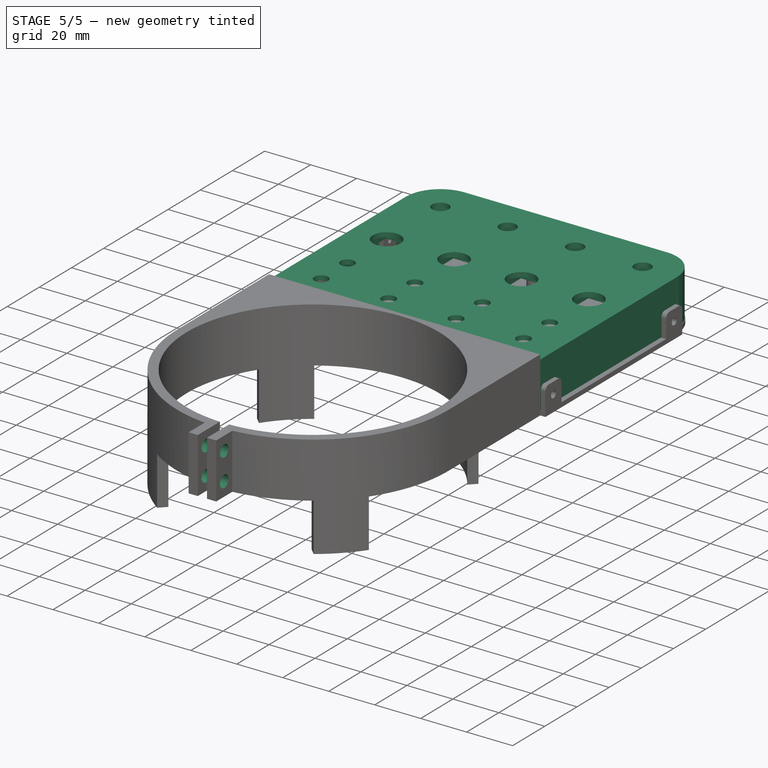
[diagram: stage 5 of 5 — iso view after this stage's code; geometry added in this stage tinted green]
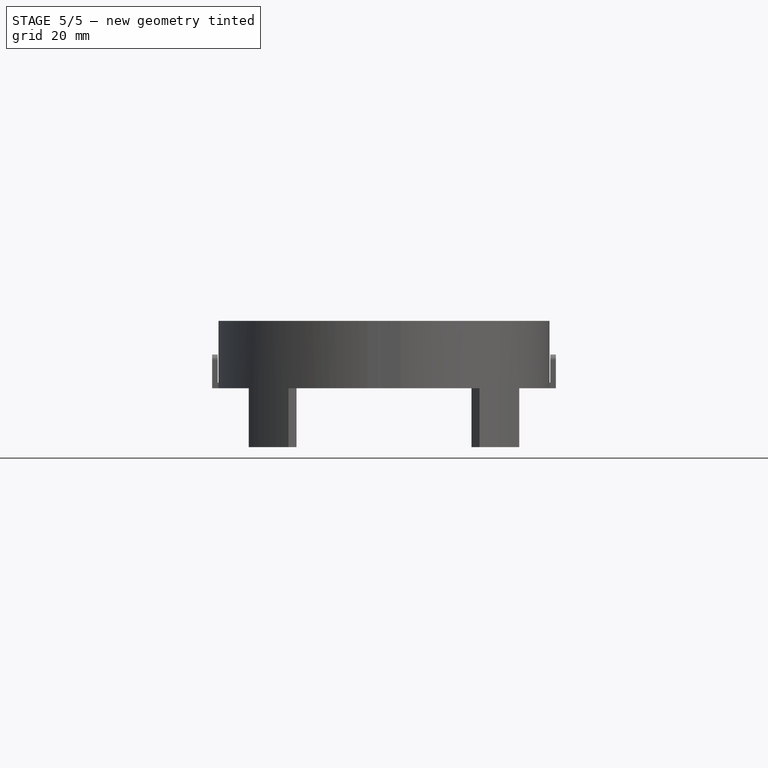
[diagram: stage 5 of 5 — front view after this stage's code; geometry added in this stage tinted green]
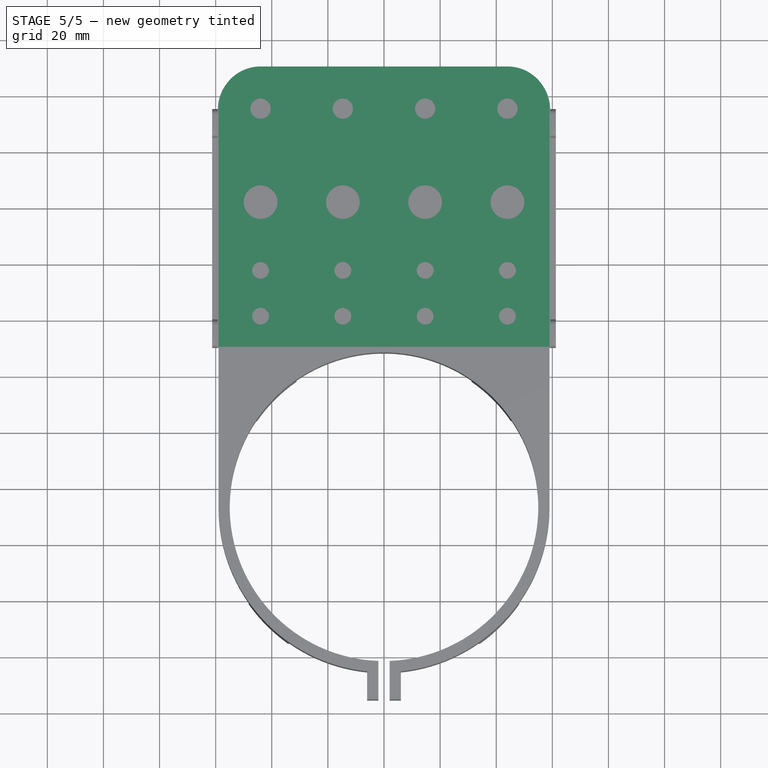
[diagram: stage 5 of 5 — top view after this stage's code; geometry added in this stage tinted green]
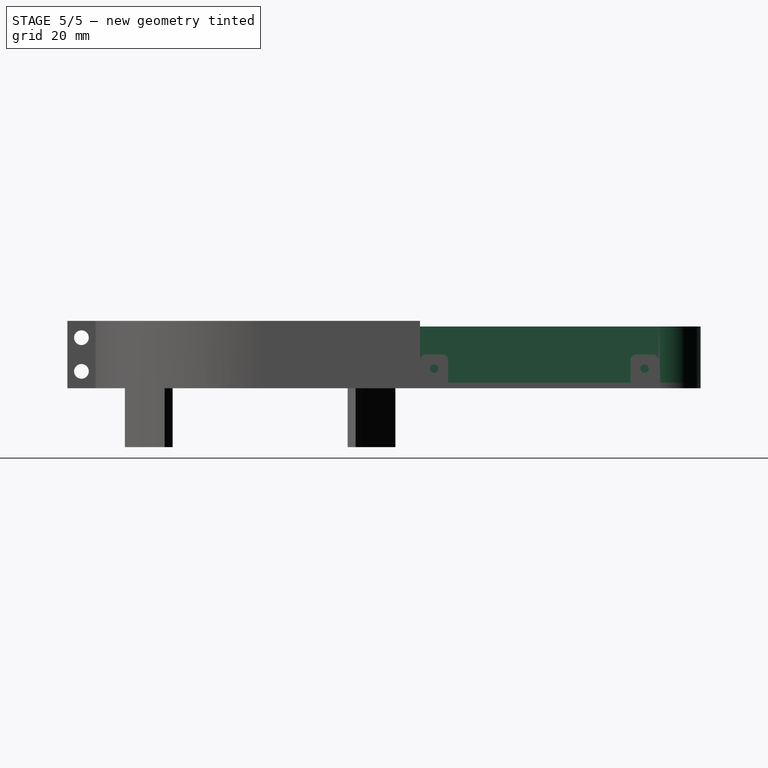
[diagram: stage 5 of 5 — right view after this stage's code; geometry added in this stage tinted green]
FEATURE [Sketcher::SketchObject] Sketch017
  AttachmentOffset = pos=(0,0,0) rot=(0,0,1;3.14159rad)
  ExternalGeometry = -> [Pocket008]
  FullyConstrained = true
  MapMode = 5
  Placement = pos=(0,0,20) rot=(0,-1,0;3.14159rad)
  Support = -> [Pocket008]
  expr: Constraints[114] = Spreadsheet.Thickness
  expr: Constraints[15] = Spreadsheet.RotaryPotDiamter + Spreadsheet.Tolerance
  expr: Constraints[55] = Spreadsheet.JoystickDiameter
  expr: Constraints[62] = Spreadsheet.SwitchDiameter + Spreadsheet.Tolerance
  sketch-geometry (57):
    g0: LineSegment StartX=-44 StartY=35 StartZ=0 EndX=-14.6667 EndY=35 EndZ=0
    g1: LineSegment StartX=-14.6667 StartY=35 StartZ=0 EndX=14.6667 EndY=35 EndZ=0
    g2: LineSegment StartX=14.6667 StartY=35 StartZ=0 EndX=44 EndY=35 EndZ=0
    g3: LineSegment StartX=-44 StartY=-39 StartZ=0 EndX=-14.6667 EndY=-39 EndZ=0
    g4: LineSegment StartX=-14.6667 StartY=-39 StartZ=0 EndX=14.6667 EndY=-39 EndZ=0
    g5: LineSegment StartX=14.6667 StartY=-39 StartZ=0 EndX=44 EndY=-39 EndZ=0
    g6: Circle CenterX=-44 CenterY=35 CenterZ=0 NormalX=0 NormalY=0 NormalZ=1 AngleXU=0 Radius=3.625
    g7: Circle CenterX=-14.6667 CenterY=35 CenterZ=0 NormalX=0 NormalY=0 NormalZ=1 AngleXU=0 Radius=3.625
    g8: Circle CenterX=14.6667 CenterY=35 CenterZ=0 NormalX=0 NormalY=0 NormalZ=1 AngleXU=0 Radius=3.625
    g9: Circle CenterX=44 CenterY=35 CenterZ=0 NormalX=0 NormalY=0 NormalZ=1 AngleXU=0 Radius=3.625
    g10: Circle CenterX=-44 CenterY=-39 CenterZ=0 NormalX=0 NormalY=0 NormalZ=1 AngleXU=0 Radius=3
    g11: Circle CenterX=-14.6667 CenterY=-39 CenterZ=0 NormalX=0 NormalY=0 NormalZ=1 AngleXU=0 Radius=3
    g12: Circle CenterX=14.6667 CenterY=-39 CenterZ=0 NormalX=0 NormalY=0 NormalZ=1 AngleXU=0 Radius=3
    g13: Circle CenterX=44 CenterY=-39 CenterZ=0 NormalX=0 NormalY=0 NormalZ=1 AngleXU=0 Radius=3
    g14: LineSegment StartX=-44 StartY=-22.6667 StartZ=0 EndX=-14.6667 EndY=-22.6667 EndZ=0
    g15: LineSegment StartX=-14.6667 StartY=-22.6667 StartZ=0 EndX=14.6667 EndY=-22.6667 EndZ=0
    g16: LineSegment StartX=14.6667 StartY=-22.6667 StartZ=0 EndX=44 EndY=-22.6667 EndZ=0
    g17: Circle CenterX=-44 CenterY=-22.6667 CenterZ=0 NormalX=0 NormalY=0 NormalZ=1 AngleXU=0 Radius=3
    g18: Circle CenterX=-14.6667 CenterY=-22.6667 CenterZ=0 NormalX=0 NormalY=0 NormalZ=1 AngleXU=0 Radius=3
    g19: Circle CenterX=14.6667 CenterY=-22.6667 CenterZ=0 NormalX=0 NormalY=0 NormalZ=1 AngleXU=0 Radius=3
    g20: Circle CenterX=44 CenterY=-22.6667 CenterZ=0 NormalX=0 NormalY=0 NormalZ=1 AngleXU=0 Radius=3
    g21: LineSegment StartX=-44 StartY=1.66667 StartZ=0 EndX=-14.6667 EndY=1.66667 EndZ=0
    g22: LineSegment StartX=-14.6667 StartY=1.66667 StartZ=0 EndX=14.6667 EndY=1.66667 EndZ=0
    g23: LineSegment StartX=14.6667 StartY=1.66667 StartZ=0 EndX=44 EndY=1.66667 EndZ=0
    g24: Circle CenterX=-44 CenterY=1.66667 CenterZ=0 NormalX=0 NormalY=0 NormalZ=1 AngleXU=0 Radius=6
    g25: Circle CenterX=-14.6667 CenterY=1.66667 CenterZ=0 NormalX=0 NormalY=0 NormalZ=1 AngleXU=0 Radius=6
    g26: Circle CenterX=14.6667 CenterY=1.66667 CenterZ=0 NormalX=0 NormalY=0 NormalZ=1 AngleXU=0 Radius=6
    g27: Circle CenterX=44 CenterY=1.66667 CenterZ=0 NormalX=0 NormalY=0 NormalZ=1 AngleXU=0 Radius=6
    g28: ArcOfCircle CenterX=-44 CenterY=35 CenterZ=0 NormalX=0 NormalY=0 NormalZ=1 AngleXU=0 Radius=8 StartAngle=3e-16 EndAngle=3.14159
    g29: LineSegment StartX=-52 StartY=35 StartZ=0 EndX=-52 EndY=19 EndZ=0
    g30: LineSegment StartX=-52 StartY=19 StartZ=0 EndX=-36 EndY=19 EndZ=0
    g31: LineSegment StartX=-36 StartY=19 StartZ=0 EndX=-36 EndY=35 EndZ=0
    g32: GeomPoint X=-44 Y=43 Z=0
    g33: LineSegment StartX=-48 StartY=-15.6667 StartZ=0 EndX=-48 EndY=-29.6667 EndZ=0
    g34: LineSegment StartX=-48 StartY=-29.6667 StartZ=0 EndX=-40 EndY=-29.6667 EndZ=0
    g35: LineSegment StartX=-40 StartY=-29.6667 StartZ=0 EndX=-40 EndY=-15.6667 EndZ=0
    g36: LineSegment StartX=-40 StartY=-15.6667 StartZ=0 EndX=-48 EndY=-15.6667 EndZ=0
    g37: GeomPoint X=-44 Y=-22.6667 Z=0
    g38: LineSegment StartX=-48 StartY=-32 StartZ=0 EndX=-48 EndY=-46 EndZ=0
    g39: LineSegment StartX=-48 StartY=-46 StartZ=0 EndX=-40 EndY=-46 EndZ=0
    g40: LineSegment StartX=-40 StartY=-46 StartZ=0 EndX=-40 EndY=-32 EndZ=0
    g41: LineSegment StartX=-40 StartY=-32 StartZ=0 EndX=-48 EndY=-32 EndZ=0
    g42: GeomPoint X=-44 Y=-39 Z=0
    g43: GeomPoint X=-44 Y=1.66667 Z=0
    g44: LineSegment StartX=0 StartY=-22.6667 StartZ=0 EndX=0 EndY=-39 EndZ=0
    g45: LineSegment StartX=-44 StartY=19 StartZ=0 EndX=-44 EndY=16.6667 EndZ=0
    g46: LineSegment StartX=-44 StartY=-13.3333 StartZ=0 EndX=-44 EndY=-15.6667 EndZ=0
    g47: LineSegment StartX=-44 StartY=-29.6667 StartZ=0 EndX=-44 EndY=-32 EndZ=0
    g48: LineSegment StartX=-44 StartY=-46 StartZ=0 EndX=-44 EndY=-48 EndZ=0
    g49: LineSegment StartX=-59 StartY=16.6667 StartZ=0 EndX=-59 EndY=-13.3333 EndZ=0
    g50: LineSegment StartX=-59 StartY=-13.3333 StartZ=0 EndX=-29 EndY=-13.3333 EndZ=0
    g51: LineSegment StartX=-29 StartY=16.6667 StartZ=0 EndX=-59 EndY=16.6667 EndZ=0
    g52: GeomPoint X=-44 Y=1.66667 Z=0
    g53: LineSegment StartX=-29 StartY=16.6667 StartZ=0 EndX=-29 EndY=-13.3333 EndZ=0
    g54: GeomPoint X=-14.6667 Y=1.66667 Z=0
    g55: GeomPoint X=0 Y=35 Z=0
    g56: GeomPoint X=0 Y=-30.8333 Z=0
  constraints (142):
    c: Horizontal(g0)
    c: Coincident(g0,g1)
    c: Horizontal(g1)
    c: Coincident(g1,g2)
    c: Horizontal(g2)
    c: Equal(g0,g1)
    c: Equal(g1,g2)
    c: Coincident(g3,g4)
    c: Horizontal(g4)
    c: Coincident(g4,g5)
    c: Horizontal(g5)
    c: Horizontal(g3)
    c: Equal(g3,g4)
    c: Equal(g4,g5)
    c: Coincident(g6,g0)
    c: Diameter(g6) = 7.25
    c: Equal(g6,g7) = 7.25
    c: Equal(g6,g8) = 7.25
    c: Equal(g6,g9) = 7.25
    c: Coincident(g10,g3)
    c: Equal(g10,g11) = 6.25
    c: Coincident(g11,g3)
    c: Equal(g10,g12) = 6.25
    c: Coincident(g12,g4)
    c: Equal(g10,g13) = 6.25
    c: Coincident(g13,g5)
    c: Coincident(g7,g0)
    c: Coincident(g8,g1)
    c: Coincident(g2,g9)
    c: Coincident(g14,g15)
    c: Horizontal(g15)
    c: Coincident(g15,g16)
    c: Horizontal(g16)
    c: Horizontal(g14)
    c: Equal(g14,g15)
    c: Equal(g15,g16)
    c: Coincident(g17,g14)
    c: Equal(g10,g17) = 6.25
    c: Equal(g17,g18) = 6.25
    c: Coincident(g18,g14)
    c: Equal(g17,g19) = 6.25
    c: Coincident(g19,g15)
    c: Equal(g17,g20) = 6.25
    c: Coincident(g20,g16)
    c: Horizontal(g21)
    c: Coincident(g21,g22)
    c: Horizontal(g22)
    c: Coincident(g22,g23)
    c: Horizontal(g23)
    c: Equal(g23,g22)
    c: Equal(g22,g21)
    c: Equal(g1,g22)
    c: Equal(g22,g15)
    c: Equal(g15,g4)
    c: Coincident(g24,g21)
    c: Diameter(g24) = 12
    c: Equal(g24,g25) = 12
    c: Coincident(g25,g21)
    c: Equal(g24,g26) = 12
    c: Coincident(g26,g22)
    c: Equal(g24,g27) = 12
    c: Coincident(g23,g27)
    c: Diameter(g17) = 6
    c: Coincident(g28,g6)
    c: Tangent(g28,g29) = -1.5708
    c: Coincident(g29,g30)
    c: Coincident(g30,g31)
    c: Tangent(g31,g28) = -1.5708
    c: Horizontal(g30)
    c: Vertical(g29)
    c: Vertical(g31)
    c: Diameter(g28) = 16
    c: PointOnObject(g32,g28)
    c: Vertical(g32,g6)
    c: DistanceY(g29,g32) = 24
    c: Coincident(g33,g34)
    c: Coincident(g34,g35)
    c: Coincident(g35,g36)
    c: Coincident(g36,g33)
    c: Horizontal(g34)
    c: Horizontal(g36)
    c: Vertical(g33)
    c: Vertical(g35)
    c: Symmetric(g34,g33,g37)
    c: Coincident(g37,g17)
    c: DistanceX(g36,g36) = 8
    c: DistanceY(g33,g33) = 14
    c: Coincident(g38,g39)
    c: Coincident(g39,g40)
    c: Coincident(g40,g41)
    c: Coincident(g41,g38)
    c: Horizontal(g39)
    c: Horizontal(g41)
    c: Vertical(g38)
    c: Vertical(g40)
    c: Symmetric(g39,g38,g42)
    c: Coincident(g42,g10)
    c: Equal(g38,g33)
    c: Equal(g41,g36)
    c: Coincident(g43,g24)
    c: Symmetric(g18,g19,g44)
    c: Symmetric(g11,g12,g44)
    c: Vertical(g44)
    c: PointOnObject(g44,g-2)
    c: Vertical(g45)
    c: Vertical(g46)
    c: Equal(g46,g45)
    c: Symmetric(g33,g35,g46)
    c: Vertical(g6,g24)
    c: Symmetric(g33,g34,g47)
    c: Symmetric(g40,g38,g47)
    c: Equal(g47,g46)
    c: Symmetric(g38,g39,g48)
    c: Vertical(g48)
    c: DistanceY(g48,g48) = 2
    c: Coincident(g49,g50)
    c: Coincident(g51,g49)
    c: Horizontal(g50)
    c: Horizontal(g51)
    c: Vertical(g49)
    c: Symmetric(g50,g49,g52)
    c: Coincident(g52,g24)
    c: Equal(g49,g50)
    c: DistanceY(g49,g49) = 30
    c: PointOnObject(g45,g51)
    c: PointOnObject(g46,g50)
    c: Vertical(g53)
    c: Coincident(g54,g25)
    c: Symmetric(g29,g30,g45)
    c: Coincident(g53,g51)
    c: Coincident(g50,g53)
    c: Vertical(g32,g-3)
    c: Horizontal(g-3,g28)
    c: PointOnObject(g55,g-2)
    c: Symmetric(g7,g8,g55)
    c: PointOnObject(g48,g-4)
    c: DistanceX(g25,g-1) = 14.6667  'JoystickCenterOffsetX'
    c: DistanceY(g-1,g25) = 1.66667  'JoystickCenterOffsetY'
    c: DistanceY(g-1,g55) = 35  'SupportOffsetNorth'
    c: Symmetric(g44,g44,g56)
    c: DistanceY(g56,g-1) = 30.8333  'SupportOffsetSouth'
    c: DistanceY(g-1,g30) = 19  'SupportOffsetNorthSides'
FEATURE [PartDesign::Pocket] Pocket011
  BaseFeature = -> Pocket008
  Direction = (0,0,1)
  Length = 5
  Length2 = 5
  Profile = -> Sketch017
  ReferenceAxis = -> Sketch017 [N_Axis]
  Type = 0
FEATURE [Sketcher::SketchObject] Sketch030
  ExternalGeometry = -> [Pocket011]
  FullyConstrained = true
  MapMode = 5
  Placement = pos=(0,0,20) rot=(1,0,0;3.14159rad)
  Support = -> [Pocket011]
  sketch-geometry (60):
    g0: LineSegment StartX=-52 StartY=6.33333 StartZ=0 EndX=-52 EndY=-9.66667 EndZ=0
    g1: LineSegment StartX=-52 StartY=-9.66667 StartZ=0 EndX=-36 EndY=-9.66667 EndZ=0
    g2: LineSegment StartX=-36 StartY=-9.66667 StartZ=0 EndX=-36 EndY=6.33333 EndZ=0
    g3: LineSegment StartX=-36 StartY=6.33333 StartZ=0 EndX=-52 EndY=6.33333 EndZ=0
    g4: GeomPoint X=-44 Y=-1.66667 Z=0
    g5: LineSegment StartX=-54 StartY=8.33333 StartZ=0 EndX=-54 EndY=-14.6667 EndZ=0
    g6: LineSegment StartX=-54 StartY=-14.6667 StartZ=0 EndX=-31 EndY=-14.6667 EndZ=0
    g7: LineSegment StartX=-31 StartY=-14.6667 StartZ=0 EndX=-31 EndY=8.33333 EndZ=0
    g8: LineSegment StartX=-31 StartY=8.33333 StartZ=0 EndX=-54 EndY=8.33333 EndZ=0
    g9: GeomPoint X=-42.5 Y=-3.16667 Z=0
    g10: LineSegment StartX=-52 StartY=6.33333 StartZ=0 EndX=-52 EndY=-12.6667 EndZ=0
    g11: LineSegment StartX=-52 StartY=-12.6667 StartZ=0 EndX=-33 EndY=-12.6667 EndZ=0
    g12: LineSegment StartX=-33 StartY=-12.6667 StartZ=0 EndX=-33 EndY=6.33333 EndZ=0
    g13: LineSegment StartX=-33 StartY=6.33333 StartZ=0 EndX=-52 EndY=6.33333 EndZ=0
    g14: GeomPoint X=-42.5 Y=-3.16667 Z=0
    g15: LineSegment StartX=-22.6667 StartY=6.33333 StartZ=0 EndX=-22.6667 EndY=-9.66667 EndZ=0
    g16: LineSegment StartX=-22.6667 StartY=-9.66667 StartZ=0 EndX=-6.66667 EndY=-9.66667 EndZ=0
    g17: LineSegment StartX=-6.66667 StartY=-9.66667 StartZ=0 EndX=-6.66667 EndY=6.33333 EndZ=0
    g18: LineSegment StartX=-6.66667 StartY=6.33333 StartZ=0 EndX=-22.6667 EndY=6.33333 EndZ=0
    g19: GeomPoint X=-14.6667 Y=-1.66667 Z=0
    g20: LineSegment StartX=-24.6667 StartY=8.33333 StartZ=0 EndX=-24.6667 EndY=-14.6667 EndZ=0
    g21: LineSegment StartX=-24.6667 StartY=-14.6667 StartZ=0 EndX=-1.66667 EndY=-14.6667 EndZ=0
    g22: LineSegment StartX=-1.66667 StartY=-14.6667 StartZ=0 EndX=-1.66667 EndY=8.33333 EndZ=0
    g23: LineSegment StartX=-1.66667 StartY=8.33333 StartZ=0 EndX=-24.6667 EndY=8.33333 EndZ=0
    g24: GeomPoint X=-13.1667 Y=-3.16667 Z=0
    g25: LineSegment StartX=-22.6667 StartY=6.33333 StartZ=0 EndX=-22.6667 EndY=-12.6667 EndZ=0
    g26: LineSegment StartX=-22.6667 StartY=-12.6667 StartZ=0 EndX=-3.66667 EndY=-12.6667 EndZ=0
    g27: LineSegment StartX=-3.66667 StartY=-12.6667 StartZ=0 EndX=-3.66667 EndY=6.33333 EndZ=0
    g28: LineSegment StartX=-3.66667 StartY=6.33333 StartZ=0 EndX=-22.6667 EndY=6.33333 EndZ=0
    g29: GeomPoint X=-13.1667 Y=-3.16667 Z=0
    g30: LineSegment StartX=6.66667 StartY=6.33333 StartZ=0 EndX=6.66667 EndY=-9.66667 EndZ=0
    g31: LineSegment StartX=6.66667 StartY=-9.66667 StartZ=0 EndX=22.6667 EndY=-9.66667 EndZ=0
    g32: LineSegment StartX=22.6667 StartY=-9.66667 StartZ=0 EndX=22.6667 EndY=6.33333 EndZ=0
    g33: LineSegment StartX=22.6667 StartY=6.33333 StartZ=0 EndX=6.66667 EndY=6.33333 EndZ=0
    g34: GeomPoint X=14.6667 Y=-1.66667 Z=0
    g35: LineSegment StartX=4.66667 StartY=8.33333 StartZ=0 EndX=4.66667 EndY=-14.6667 EndZ=0
    g36: LineSegment StartX=4.66667 StartY=-14.6667 StartZ=0 EndX=27.6667 EndY=-14.6667 EndZ=0
    g37: LineSegment StartX=27.6667 StartY=-14.6667 StartZ=0 EndX=27.6667 EndY=8.33333 EndZ=0
    g38: LineSegment StartX=27.6667 StartY=8.33333 StartZ=0 EndX=4.66667 EndY=8.33333 EndZ=0
    g39: GeomPoint X=16.1667 Y=-3.16667 Z=0
    g40: LineSegment StartX=6.66667 StartY=6.33333 StartZ=0 EndX=6.66667 EndY=-12.6667 EndZ=0
    g41: LineSegment StartX=6.66667 StartY=-12.6667 StartZ=0 EndX=25.6667 EndY=-12.6667 EndZ=0
    g42: LineSegment StartX=25.6667 StartY=-12.6667 StartZ=0 EndX=25.6667 EndY=6.33333 EndZ=0
    g43: LineSegment StartX=25.6667 StartY=6.33333 StartZ=0 EndX=6.66667 EndY=6.33333 EndZ=0
    g44: GeomPoint X=16.1667 Y=-3.16667 Z=0
    g45: LineSegment StartX=36 StartY=6.33333 StartZ=0 EndX=36 EndY=-9.66667 EndZ=0
    g46: LineSegment StartX=36 StartY=-9.66667 StartZ=0 EndX=52 EndY=-9.66667 EndZ=0
    g47: LineSegment StartX=52 StartY=-9.66667 StartZ=0 EndX=52 EndY=6.33333 EndZ=0
    g48: LineSegment StartX=52 StartY=6.33333 StartZ=0 EndX=36 EndY=6.33333 EndZ=0
    g49: GeomPoint X=44 Y=-1.66667 Z=0
    g50: LineSegment StartX=34 StartY=8.33333 StartZ=0 EndX=34 EndY=-14.6667 EndZ=0
    g51: LineSegment StartX=34 StartY=-14.6667 StartZ=0 EndX=57 EndY=-14.6667 EndZ=0
    g52: LineSegment StartX=57 StartY=-14.6667 StartZ=0 EndX=57 EndY=8.33333 EndZ=0
    g53: LineSegment StartX=57 StartY=8.33333 StartZ=0 EndX=34 EndY=8.33333 EndZ=0
    g54: GeomPoint X=45.5 Y=-3.16667 Z=0
    g55: LineSegment StartX=36 StartY=6.33333 StartZ=0 EndX=36 EndY=-12.6667 EndZ=0
    g56: LineSegment StartX=36 StartY=-12.6667 StartZ=0 EndX=55 EndY=-12.6667 EndZ=0
    g57: LineSegment StartX=55 StartY=-12.6667 StartZ=0 EndX=55 EndY=6.33333 EndZ=0
    g58: LineSegment StartX=55 StartY=6.33333 StartZ=0 EndX=36 EndY=6.33333 EndZ=0
    g59: GeomPoint X=45.5 Y=-3.16667 Z=0
  constraints (144):
    c: Coincident(g0,g1)
    c: Coincident(g1,g2)
    c: Coincident(g2,g3)
    c: Coincident(g3,g0)
    c: Horizontal(g1)
    c: Horizontal(g3)
    c: Vertical(g0)
    c: Vertical(g2)
    c: Symmetric(g1,g0,g4)
    c: Coincident(g4,g-3)
    c: Equal(g1,g0)
    c: DistanceX(g1,g1) = 16
    c: Coincident(g5,g6)
    c: Coincident(g6,g7)
    c: Coincident(g7,g8)
    c: Coincident(g8,g5)
    c: Horizontal(g6)
    c: Horizontal(g8)
    c: Vertical(g5)
    c: Vertical(g7)
    c: Symmetric(g6,g5,g9)
    c: Coincident(g10,g11)
    c: Coincident(g11,g12)
    c: Coincident(g12,g13)
    c: Coincident(g13,g10)
    c: Horizontal(g11)
    c: Horizontal(g13)
    c: Vertical(g10)
    c: Vertical(g12)
    c: Symmetric(g11,g10,g14)
    c: Coincident(g14,g9)
    c: DistanceX(g11,g11) = 19
    c: DistanceX(g6,g6) = 23
    c: Equal(g11,g10)
    c: Equal(g5,g6)
    c: Coincident(g0,g10)
    c: Coincident(g15,g16)
    c: Coincident(g16,g17)
    c: Coincident(g17,g18)
    c: Coincident(g18,g15)
    c: Horizontal(g16)
    c: Horizontal(g18)
    c: Vertical(g15)
    c: Vertical(g17)
    c: Symmetric(g16,g15,g19)
    c: Equal(g16,g15)
    c: Equal(g1,g16) = 16
    c: Coincident(g20,g21)
    c: Coincident(g21,g22)
    c: Coincident(g22,g23)
    c: Coincident(g23,g20)
    c: Horizontal(g21)
    c: Horizontal(g23)
    c: Vertical(g20)
    c: Vertical(g22)
    c: Symmetric(g21,g20,g24)
    c: Coincident(g25,g26)
    c: Coincident(g26,g27)
    c: Coincident(g27,g28)
    c: Coincident(g28,g25)
    c: Horizontal(g26)
    c: Horizontal(g28)
    c: Vertical(g25)
    c: Vertical(g27)
    c: Symmetric(g26,g25,g29)
    c: Coincident(g29,g24)
    c: Equal(g11,g26) = 19
    c: Equal(g6,g21) = 23
    c: Equal(g26,g25)
    c: Equal(g20,g21)
    c: Coincident(g15,g25)
    c: Coincident(g19,g-4)
    c: Coincident(g30,g31)
    c: Coincident(g31,g32)
    c: Coincident(g32,g33)
    c: Coincident(g33,g30)
    c: Horizontal(g31)
    c: Horizontal(g33)
    c: Vertical(g30)
    c: Vertical(g32)
    c: Symmetric(g31,g30,g34)
    c: Equal(g31,g30)
    c: Equal(g1,g31) = 16
    c: Coincident(g35,g36)
    c: Coincident(g36,g37)
    c: Coincident(g37,g38)
    c: Coincident(g38,g35)
    c: Horizontal(g36)
    c: Horizontal(g38)
    c: Vertical(g35)
    c: Vertical(g37)
    c: Symmetric(g36,g35,g39)
    c: Coincident(g40,g41)
    c: Coincident(g41,g42)
    c: Coincident(g42,g43)
    c: Coincident(g43,g40)
    c: Horizontal(g41)
    c: Horizontal(g43)
    c: Vertical(g40)
    c: Vertical(g42)
    c: Symmetric(g41,g40,g44)
    c: Coincident(g44,g39)
    c: Equal(g11,g41) = 19
    c: Equal(g6,g36) = 23
    c: Equal(g41,g40)
    c: Equal(g35,g36)
    c: Coincident(g30,g40)
    c: Coincident(g34,g-5)
    c: Coincident(g45,g46)
    c: Coincident(g46,g47)
    c: Coincident(g47,g48)
    c: Coincident(g48,g45)
    c: Horizontal(g46)
    c: Horizontal(g48)
    c: Vertical(g45)
    c: Vertical(g47)
    c: Symmetric(g46,g45,g49)
    c: Equal(g46,g45)
    c: Equal(g1,g46) = 16
    c: Coincident(g50,g51)
    c: Coincident(g51,g52)
    c: Coincident(g52,g53)
    c: Coincident(g53,g50)
    c: Horizontal(g51)
    c: Horizontal(g53)
    c: Vertical(g50)
    c: Vertical(g52)
    c: Symmetric(g51,g50,g54)
    c: Coincident(g55,g56)
    c: Coincident(g56,g57)
    c: Coincident(g57,g58)
    c: Coincident(g58,g55)
    c: Horizontal(g56)
    c: Horizontal(g58)
    c: Vertical(g55)
    c: Vertical(g57)
    c: Symmetric(g56,g55,g59)
    c: Coincident(g59,g54)
    c: Equal(g11,g56) = 19
    c: Equal(g6,g51) = 23
    c: Equal(g56,g55)
    c: Equal(g50,g51)
    c: Coincident(g45,g55)
    c: Coincident(g49,g-6)
FEATURE [PartDesign::Pad] Pad010
  BaseFeature = -> Pocket011
  Direction = (0,0,-1)
  Length = 4
  Length2 = 10
  Profile = -> Sketch030
  ReferenceAxis = -> Sketch030 [N_Axis]
  Type = 0
  expr: Length = 2 * Spreadsheet.Thickness
FEATURE [Sketcher::SketchObject] Sketch031
  ExternalGeometry = -> [Pad010]
  FullyConstrained = true
  MapMode = 5
  Placement = pos=(0,0,20) rot=(1,0,0;3.14159rad)
  Support = -> [Pad010]
  expr: Constraints[12] = 1
  sketch-geometry (24):
    g0: LineSegment StartX=-44 StartY=-35 StartZ=0 EndX=-53 EndY=-35 EndZ=0
    g1: LineSegment StartX=-53.5 StartY=-36.5 StartZ=0 EndX=-53.5 EndY=-33.5 EndZ=0
    g2: LineSegment StartX=-53.5 StartY=-33.5 StartZ=0 EndX=-52.5 EndY=-33.5 EndZ=0
    g3: LineSegment StartX=-52.5 StartY=-33.5 StartZ=0 EndX=-52.5 EndY=-36.5 EndZ=0
    g4: LineSegment StartX=-52.5 StartY=-36.5 StartZ=0 EndX=-53.5 EndY=-36.5 EndZ=0
    g5: GeomPoint X=-53 Y=-35 Z=0
    g6: LineSegment StartX=-14.6667 StartY=-35 StartZ=0 EndX=-23.6667 EndY=-35 EndZ=0
    g7: LineSegment StartX=-24.1667 StartY=-36.5 StartZ=0 EndX=-24.1667 EndY=-33.5 EndZ=0
    g8: LineSegment StartX=-24.1667 StartY=-33.5 StartZ=0 EndX=-23.1667 EndY=-33.5 EndZ=0
    g9: LineSegment StartX=-23.1667 StartY=-33.5 StartZ=0 EndX=-23.1667 EndY=-36.5 EndZ=0
    g10: LineSegment StartX=-23.1667 StartY=-36.5 StartZ=0 EndX=-24.1667 EndY=-36.5 EndZ=0
    g11: GeomPoint X=-23.6667 Y=-35 Z=0
    g12: LineSegment StartX=14.6667 StartY=-35 StartZ=0 EndX=5.66667 EndY=-35 EndZ=0
    g13: LineSegment StartX=5.16667 StartY=-36.5 StartZ=0 EndX=5.16667 EndY=-33.5 EndZ=0
    g14: LineSegment StartX=5.16667 StartY=-33.5 StartZ=0 EndX=6.16667 EndY=-33.5 EndZ=0
    g15: LineSegment StartX=6.16667 StartY=-33.5 StartZ=0 EndX=6.16667 EndY=-36.5 EndZ=0
    g16: LineSegment StartX=6.16667 StartY=-36.5 StartZ=0 EndX=5.16667 EndY=-36.5 EndZ=0
    g17: GeomPoint X=5.66667 Y=-35 Z=0
    g18: LineSegment StartX=44 StartY=-35 StartZ=0 EndX=35 EndY=-35 EndZ=0
    g19: LineSegment StartX=34.5 StartY=-36.5 StartZ=0 EndX=34.5 EndY=-33.5 EndZ=0
    g20: LineSegment StartX=34.5 StartY=-33.5 StartZ=0 EndX=35.5 EndY=-33.5 EndZ=0
    g21: LineSegment StartX=35.5 StartY=-33.5 StartZ=0 EndX=35.5 EndY=-36.5 EndZ=0
    g22: LineSegment StartX=35.5 StartY=-36.5 StartZ=0 EndX=34.5 EndY=-36.5 EndZ=0
    g23: GeomPoint X=35 Y=-35 Z=0
  constraints (60):
    c: Coincident(g0,g-3)
    c: Horizontal(g0)
    c: Coincident(g1,g2)
    c: Coincident(g2,g3)
    c: Coincident(g3,g4)
    c: Coincident(g4,g1)
    c: Horizontal(g2)
    c: Horizontal(g4)
    c: Vertical(g1)
    c: Vertical(g3)
    c: Symmetric(g2,g1,g5)
    c: Coincident(g5,g0)
    c: DistanceX(g2,g2) = 1
    c: DistanceY(g1,g1) = 3
    c: DistanceX(g0,g0) = 9
    c: Horizontal(g6)
    c: Coincident(g7,g8)
    c: Coincident(g8,g9)
    c: Coincident(g9,g10)
    c: Coincident(g10,g7)
    c: Horizontal(g8)
    c: Horizontal(g10)
    c: Vertical(g7)
    c: Vertical(g9)
    c: Symmetric(g8,g7,g11)
    c: Coincident(g11,g6)
    c: Equal(g2,g8) = 1
    c: Equal(g1,g7) = 3
    c: Equal(g0,g6) = 9
    c: Horizontal(g12)
    c: Coincident(g13,g14)
    c: Coincident(g14,g15)
    c: Coincident(g15,g16)
    c: Coincident(g16,g13)
    c: Horizontal(g14)
    c: Horizontal(g16)
    c: Vertical(g13)
    c: Vertical(g15)
    c: Symmetric(g14,g13,g17)
    c: Coincident(g17,g12)
    c: Equal(g2,g14) = 1
    c: Equal(g1,g13) = 3
    c: Equal(g0,g12) = 9
    c: Horizontal(g18)
    c: Coincident(g19,g20)
    c: Coincident(g20,g21)
    c: Coincident(g21,g22)
    c: Coincident(g22,g19)
    c: Horizontal(g20)
    c: Horizontal(g22)
    c: Vertical(g19)
    c: Vertical(g21)
    c: Symmetric(g20,g19,g23)
    c: Coincident(g23,g18)
    c: Equal(g2,g20) = 1
    c: Equal(g1,g19) = 3
    c: Equal(g0,g18) = 9
    c: Coincident(g18,g-6)
    c: Coincident(g12,g-5)
    c: Coincident(g6,g-4)
FEATURE [PartDesign::Pocket] Pocket019
  BaseFeature = -> Pad010
  Direction = (0,0,1)
  Length = 1
  Length2 = 5
  Profile = -> Sketch031
  ReferenceAxis = -> Sketch031 [N_Axis]
  Type = 0
FEATURE [Sketcher::SketchObject] Sketch032
  ExternalGeometry = -> [Pocket019]
  FullyConstrained = true
  MapMode = 5
  Placement = pos=(0,-50,0) rot=(1,0,0;1.5708rad)
  Support = -> [Pocket019]
  expr: Constraints[8] = Spreadsheet.BoltSmallDiameter + Spreadsheet.Tolerance
  expr: Constraints[9] = 4 * Spreadsheet.Thickness
  sketch-geometry (4):
    g0: Circle CenterX=-51 CenterY=11 CenterZ=0 NormalX=0 NormalY=0 NormalZ=1 AngleXU=0 Radius=2.625
    g1: Circle CenterX=51 CenterY=11 CenterZ=0 NormalX=0 NormalY=0 NormalZ=1 AngleXU=0 Radius=2.625
    g2: LineSegment StartX=-51 StartY=11 StartZ=0 EndX=-59 EndY=11 EndZ=0
    g3: LineSegment StartX=51 StartY=11 StartZ=0 EndX=59 EndY=11 EndZ=0
  constraints (10):
    c: Equal(g1,g0)
    c: Coincident(g2,g0)
    c: Horizontal(g2)
    c: Symmetric(g-3,g-3,g2)
    c: Coincident(g3,g1)
    c: Horizontal(g3)
    c: Symmetric(g-4,g-4,g3)
    c: Equal(g2,g3)
    c: Diameter(g1) = 5.25
    c: DistanceX(g3,g3) = 8
FEATURE [PartDesign::Pocket] Pocket020
  BaseFeature = -> Pocket019
  Direction = (0,1,-2e-16)
  Length = 2
  Length2 = 5
  Profile = -> Sketch032
  ReferenceAxis = -> Sketch032 [N_Axis]
  Type = 0
  expr: Length = Spreadsheet.Thickness
FEATURE [Sketcher::SketchObject] Sketch036
  ExternalGeometry = -> [Pad011]
  FullyConstrained = true
  MapMode = 5
  Placement = pos=(6,0,0) rot=(0.57735,0.57735,0.57735;2.0944rad)
  Support = -> [Pad011]
  expr: Constraints[1] = Spreadsheet.BoltSmallDiameter + Spreadsheet.Tolerance
  sketch-geometry (7):
    g0: Circle CenterX=-170.694 CenterY=18 CenterZ=0 NormalX=0 NormalY=0 NormalZ=1 AngleXU=0 Radius=2.625
    g1: Circle CenterX=-170.694 CenterY=6 CenterZ=0 NormalX=0 NormalY=0 NormalZ=1 AngleXU=0 Radius=2.625
    g2: GeomPoint X=-170.694 Y=12 Z=0
    g3: LineSegment StartX=-170.694 StartY=18 StartZ=0 EndX=-170.694 EndY=12 EndZ=0
    g4: LineSegment StartX=-170.694 StartY=6 StartZ=0 EndX=-170.694 EndY=12 EndZ=0
    g5: LineSegment StartX=-170.694 StartY=24 StartZ=0 EndX=-170.694 EndY=18 EndZ=0
    g6: LineSegment StartX=-170.694 StartY=6 StartZ=0 EndX=-170.694 EndY=0 EndZ=0
  constraints (17):
    c: Equal(g1,g0)
    c: Diameter(g0) = 5.25
    c: Coincident(g3,g0)
    c: Coincident(g3,g2)
    c: Coincident(g4,g1)
    c: Coincident(g4,g2)
    c: Equal(g4,g3)
    c: Vertical(g4)
    c: Vertical(g3)
    c: Coincident(g5,g0)
    c: Vertical(g5)
    c: PointOnObject(g5,g-3)
    c: Equal(g5,g3)
    c: Coincident(g6,g1)
    c: PointOnObject(g6,g-4)
    c: Vertical(g6)
    c: Symmetric(g-3,g-4,g2)
FEATURE [PartDesign::Pocket] Pocket022
  BaseFeature = -> Pad011
  Direction = (-1,0,0)
  Length = 5
  Length2 = 5
  Profile = -> Sketch036
  ReferenceAxis = -> Sketch036 [N_Axis]
  Type = 1
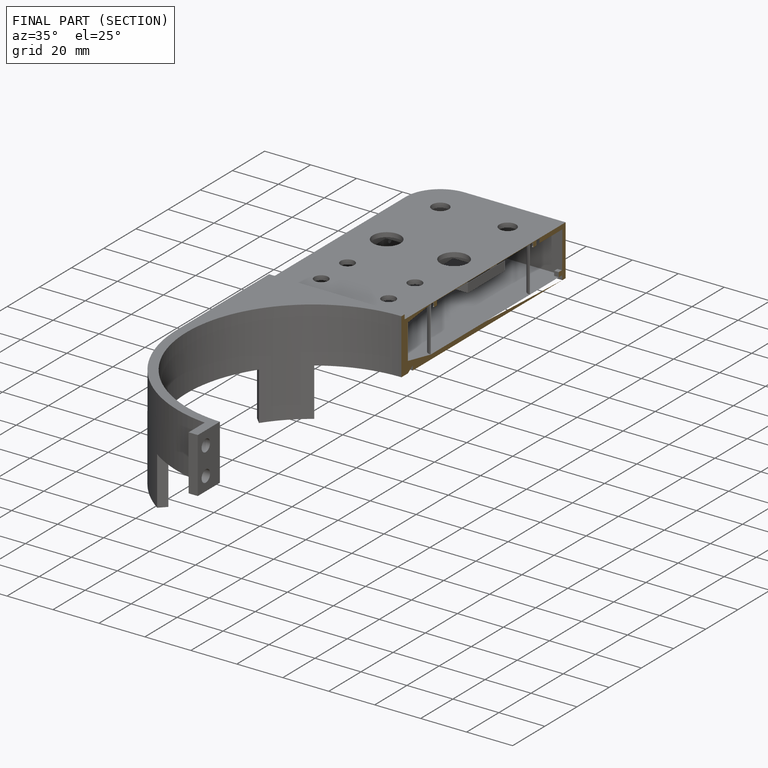
[diagram: finished part — half-section view (interior)]
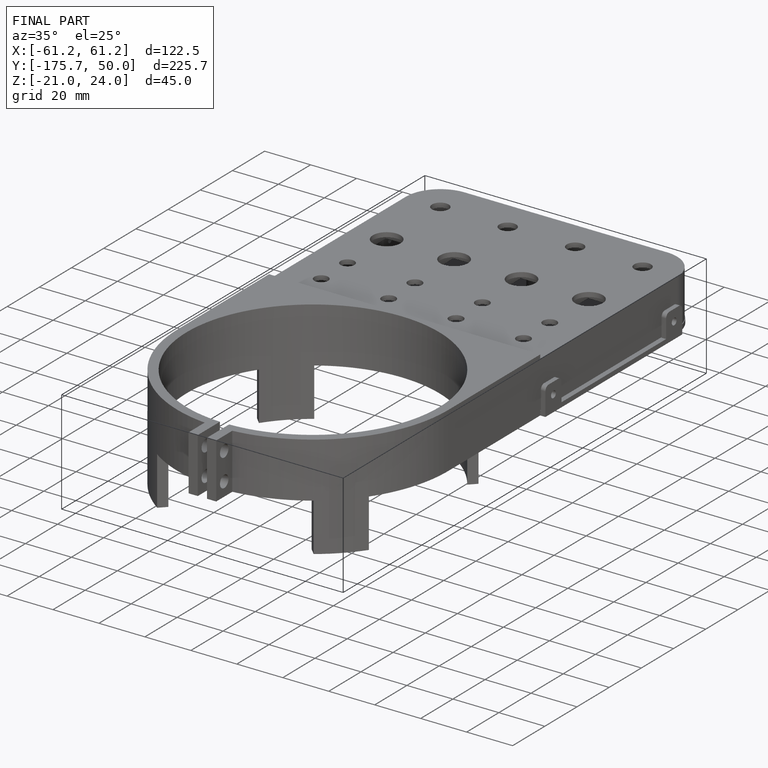
[diagram: finished part — iso view with bounding-box wireframe]
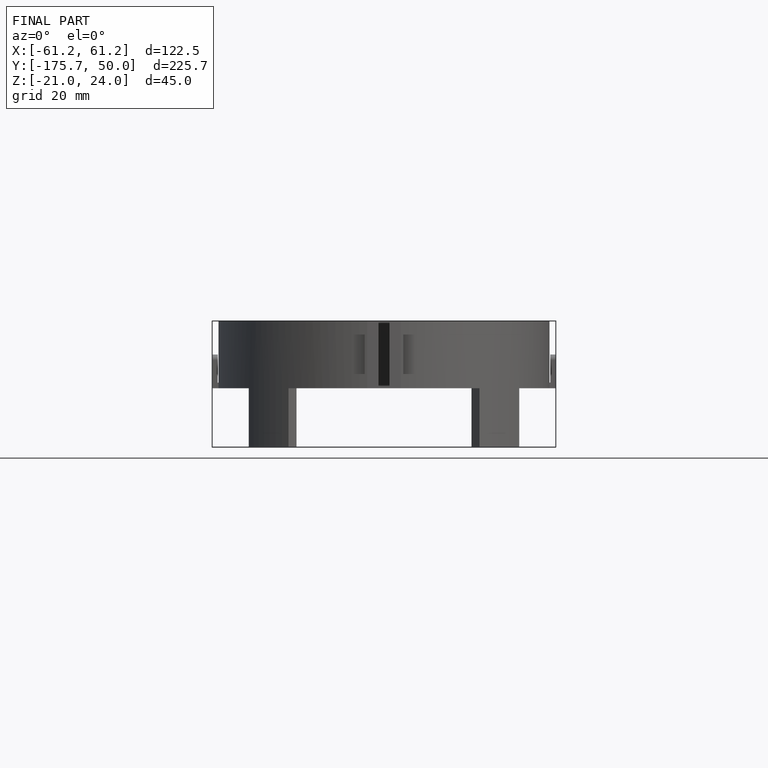
[diagram: finished part — front view with bounding-box wireframe]
